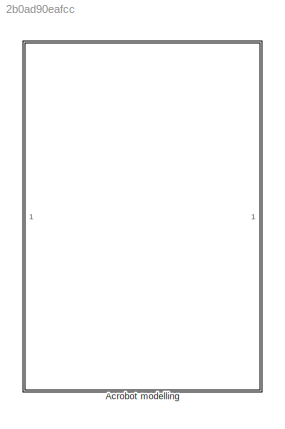
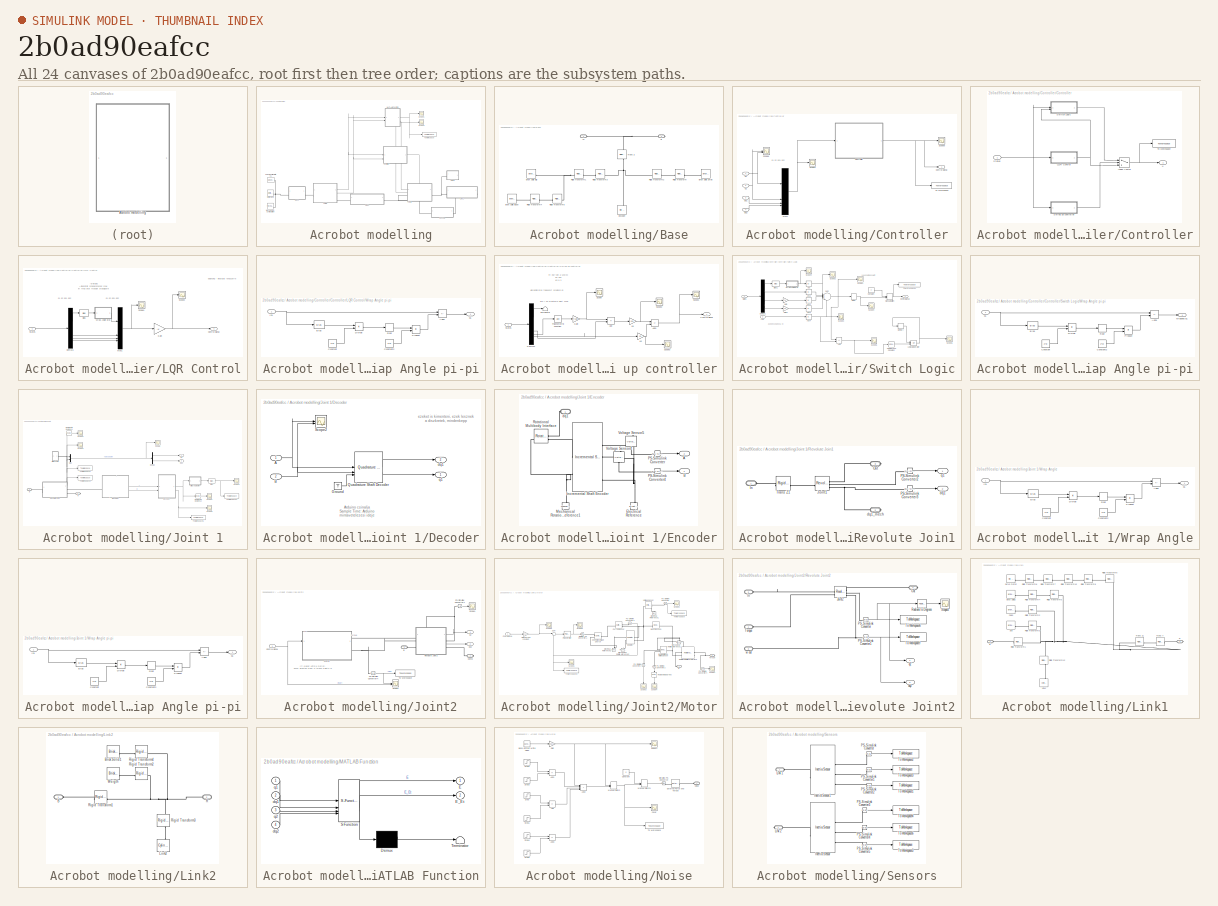
[diagram: thumbnail index - all 24 canvases of the model, root first then tree order]
MODEL slx_2b0ad90eafcc
KIND model
CONFIG AbsTol = auto
CONFIG EnableMultiTasking = off
CONFIG FixedStep = 0.0002
CONFIG MaxStep = 1.6
CONFIG MinStep = auto
CONFIG RelTol = 1e-4
CONFIG SampleTimeConstraint = Unconstrained
CONFIG SolverName = ode23t
CONFIG StartTime = 0.0
CONFIG StopTime = 35
BLOCK [SubSystem] Acrobot modelling
BLOCK [SubSystem] Acrobot modelling/Base
BLOCK [PMIOPort] Acrobot modelling/Base/B 
  Port = 2
  Side = Right
BLOCK [Reference] Acrobot modelling/Base/Brick Solid Base  REF=sm_lib/Body Elements/Brick Solid
  SourceBlock = sm_lib/Body Elements/Brick Solid
  SourceType = Brick Solid
BLOCK [Reference] Acrobot modelling/Base/Brick Solid Big  REF=sm_lib/Body Elements/Brick Solid
  SourceBlock = sm_lib/Body Elements/Brick Solid
  SourceType = Brick Solid
BLOCK [Reference] Acrobot modelling/Base/Brick Solid Small  REF=sm_lib/Body Elements/Brick Solid
  NameLocation = top
  SourceBlock = sm_lib/Body Elements/Brick Solid
  SourceType = Brick Solid
BLOCK [Reference] Acrobot modelling/Base/Encoder  REF=sm_lib/Body Elements/File Solid
  NameLocation = right
  SourceBlock = sm_lib/Body Elements/File Solid
  SourceType = File Solid
BLOCK [Reference] Acrobot modelling/Base/Rigid Transform  REF=sm_lib/Frames and
Transforms/Rigid
Transform
  SourceBlock = sm_lib/Frames and\nTransforms/Rigid\nTransform
  SourceType = Rigid\nTransform
BLOCK [Reference] Acrobot modelling/Base/Rigid Transform1  REF=sm_lib/Frames and
Transforms/Rigid
Transform
  NameLocation = top
  SourceBlock = sm_lib/Frames and\nTransforms/Rigid\nTransform
  SourceType = Rigid\nTransform
BLOCK [Reference] Acrobot modelling/Base/Rigid Transform2  REF=sm_lib/Frames and
Transforms/Rigid
Transform
  SourceBlock = sm_lib/Frames and\nTransforms/Rigid\nTransform
  SourceType = Rigid\nTransform
BLOCK [Reference] Acrobot modelling/Base/Rigid Transform3  REF=sm_lib/Frames and
Transforms/Rigid
Transform
  NameLocation = top
  SourceBlock = sm_lib/Frames and\nTransforms/Rigid\nTransform
  SourceType = Rigid\nTransform
BLOCK [Reference] Acrobot modelling/Base/Rigid Transform4  REF=sm_lib/Frames and
Transforms/Rigid
Transform
  NameLocation = top
  SourceBlock = sm_lib/Frames and\nTransforms/Rigid\nTransform
  SourceType = Rigid\nTransform
BLOCK [Reference] Acrobot modelling/Base/Rigid Transform5  REF=sm_lib/Frames and
Transforms/Rigid
Transform
  NameLocation = top
  SourceBlock = sm_lib/Frames and\nTransforms/Rigid\nTransform
  SourceType = Rigid\nTransform
BLOCK [Reference] Acrobot modelling/Base/Trans Z  REF=sm_lib/Frames and
Transforms/Rigid
Transform
  NameLocation = right
  SourceBlock = sm_lib/Frames and\nTransforms/Rigid\nTransform
  SourceType = Rigid\nTransform
BLOCK [PMIOPort] Acrobot modelling/Base/W 
  Side = Left
BLOCK [SubSystem] Acrobot modelling/Controller
BLOCK [Outport] Acrobot modelling/Controller/Control signal
BLOCK [SubSystem] Acrobot modelling/Controller/Controller
BLOCK [MultiPortSwitch] Acrobot modelling/Controller/Controller/Index Vector
  DataPortOrder = Zero-based contiguous
  InputSameDT = off
  Inputs = 2
  SaturateOnIntegerOverflow = off
  zeroidx = on
BLOCK [SubSystem] Acrobot modelling/Controller/Controller/LQR Control
BLOCK [Bias] Acrobot modelling/Controller/Controller/LQR Control/Bias
  Bias = -pi
  SaturateOnIntegerOverflow = off
BLOCK [Outport] Acrobot modelling/Controller/Controller/LQR Control/Control signal
BLOCK [Demux] Acrobot modelling/Controller/Controller/LQR Control/Demux1
BLOCK [Gain] Acrobot modelling/Controller/Controller/LQR Control/Gain
  Gain = -K
  Multiplication = Matrix(K*u)
BLOCK [Mux] Acrobot modelling/Controller/Controller/LQR Control/Mux1
  DisplayOption = bar
BLOCK [Scope] Acrobot modelling/Controller/Controller/LQR Control/Scope1
  Floating = off
  NumInputPorts = 1
  ScopeSpecificationString = Simulink.scopes.TimeScopeBlockCfg('CurrentConfiguration', extmgr.ConfigurationSet(extmgr.Configuration('Core','General UI',true),extmgr.Configuration('Core','Source UI',true),extmgr.Configuration('Sources','WiredSimulink',true,'DataLoggingVariableName','ScopeData1'),extmgr.Configuration('Visuals','Time Domain',true,'SerializedDisplays',{struct('MinYLimReal','-11.00385','MaxYLimReal','6.27216','YLa...<+1518ch>
BLOCK [Scope] Acrobot modelling/Controller/Controller/LQR Control/Scope2
  Floating = off
  NumInputPorts = 1
  ScopeSpecificationString = Simulink.scopes.TimeScopeBlockCfg('CurrentConfiguration', extmgr.ConfigurationSet(extmgr.Configuration('Core','General UI',true),extmgr.Configuration('Core','Source UI',true),extmgr.Configuration('Sources','WiredSimulink',true,'DataLoggingVariableName','ScopeData2'),extmgr.Configuration('Visuals','Time Domain',true,'SerializedDisplays',{struct('MinYLimReal','-163.156','MaxYLimReal','163.56574','YL...<+1481ch>
BLOCK [Inport] Acrobot modelling/Controller/Controller/LQR Control/States
BLOCK [SubSystem] Acrobot modelling/Controller/Controller/LQR Control/Wrap Angle pi-pi
BLOCK [Sum] Acrobot modelling/Controller/Controller/LQR Control/Wrap Angle pi-pi/Add1
  IconShape = rectangular
  Inputs = +-
BLOCK [Bias] Acrobot modelling/Controller/Controller/LQR Control/Wrap Angle pi-pi/Bias
  Bias = pi
  SaturateOnIntegerOverflow = off
BLOCK [Constant] Acrobot modelling/Controller/Controller/LQR Control/Wrap Angle pi-pi/Constant
  Value = 2*pi
BLOCK [Constant] Acrobot modelling/Controller/Controller/LQR Control/Wrap Angle pi-pi/Constant2
  Value = 2*pi
BLOCK [Product] Acrobot modelling/Controller/Controller/LQR Control/Wrap Angle pi-pi/Divide
  Inputs = */
BLOCK [Rounding] Acrobot modelling/Controller/Controller/LQR Control/Wrap Angle pi-pi/Floor
BLOCK [Inport] Acrobot modelling/Controller/Controller/LQR Control/Wrap Angle pi-pi/In1
BLOCK [Product] Acrobot modelling/Controller/Controller/LQR Control/Wrap Angle pi-pi/Product
  Inputs = **
BLOCK [Outport] Acrobot modelling/Controller/Controller/LQR Control/Wrap Angle pi-pi/q1
BLOCK [Inport] Acrobot modelling/Controller/Controller/States
BLOCK [SubSystem] Acrobot modelling/Controller/Controller/Swing up controller
BLOCK [Sum] Acrobot modelling/Controller/Controller/Swing up controller/Add
  IconShape = rectangular
  Inputs = +-
BLOCK [Sum] Acrobot modelling/Controller/Controller/Swing up controller/Add1
  IconShape = rectangular
  Inputs = +-
BLOCK [Outport] Acrobot modelling/Controller/Controller/Swing up controller/Control signal
BLOCK [Demux] Acrobot modelling/Controller/Controller/Swing up controller/Demux1
BLOCK [Gain] Acrobot modelling/Controller/Controller/Swing up controller/Gain
  Gain = 2*1.0/pi
BLOCK [Scope] Acrobot modelling/Controller/Controller/Swing up controller/Scope
  Floating = off
  NumInputPorts = 1
  ScopeSpecificationString = Simulink.scopes.TimeScopeBlockCfg('CurrentConfiguration', extmgr.ConfigurationSet(extmgr.Configuration('Core','General UI',true),extmgr.Configuration('Core','Source UI',true),extmgr.Configuration('Sources','WiredSimulink',true,'DataLoggingVariableName','ScopeData1'),extmgr.Configuration('Visuals','Time Domain',true,'SerializedDisplays',{struct('MinYLimReal','-1.15627','MaxYLimReal','1.15612','YLab...<+1417ch>
BLOCK [Scope] Acrobot modelling/Controller/Controller/Swing up controller/Scope1
  Floating = off
  NumInputPorts = 1
  ScopeSpecificationString = Simulink.scopes.TimeScopeBlockCfg('CurrentConfiguration', extmgr.ConfigurationSet(extmgr.Configuration('Core','General UI',true),extmgr.Configuration('Core','Source UI',true),extmgr.Configuration('Sources','WiredSimulink',true,'DataLoggingVariableName','ScopeData1'),extmgr.Configuration('Visuals','Time Domain',true,'SerializedDisplays',{struct('MinYLimReal','-30.04206','MaxYLimReal','30.04253','YL...<+1442ch>
BLOCK [Scope] Acrobot modelling/Controller/Controller/Swing up controller/Scope2
  Floating = off
  NumInputPorts = 1
  ScopeSpecificationString = Simulink.scopes.TimeScopeBlockCfg('CurrentConfiguration', extmgr.ConfigurationSet(extmgr.Configuration('Core','General UI',true),extmgr.Configuration('Core','Source UI',true),extmgr.Configuration('Sources','WiredSimulink',true,'DataLoggingVariableName','ScopeData2'),extmgr.Configuration('Visuals','Time Domain',true,'SerializedDisplays',{struct('MinYLimReal','-30.04355','MaxYLimReal','30.04403','YL...<+1440ch>
BLOCK [Scope] Acrobot modelling/Controller/Controller/Swing up controller/Scope3
  Floating = off
  NumInputPorts = 1
  ScopeSpecificationString = Simulink.scopes.TimeScopeBlockCfg('CurrentConfiguration', extmgr.ConfigurationSet(extmgr.Configuration('Core','General UI',true),extmgr.Configuration('Core','Source UI',true),extmgr.Configuration('Sources','WiredSimulink',true,'DataLoggingVariableName','ScopeData3'),extmgr.Configuration('Visuals','Time Domain',true,'SerializedDisplays',{struct('MinYLimReal','-2.81547','MaxYLimReal','2.46956','YLab...<+1415ch>
BLOCK [Inport] Acrobot modelling/Controller/Controller/Swing up controller/States
BLOCK [Terminator] Acrobot modelling/Controller/Controller/Swing up controller/Terminator
BLOCK [Trigonometry] Acrobot modelling/Controller/Controller/Swing up controller/Trigonometric Function
  Operator = atan
BLOCK [Gain] Acrobot modelling/Controller/Controller/Swing up controller/kd
  Gain = 0.3
BLOCK [Gain] Acrobot modelling/Controller/Controller/Swing up controller/kp
  Gain = 450
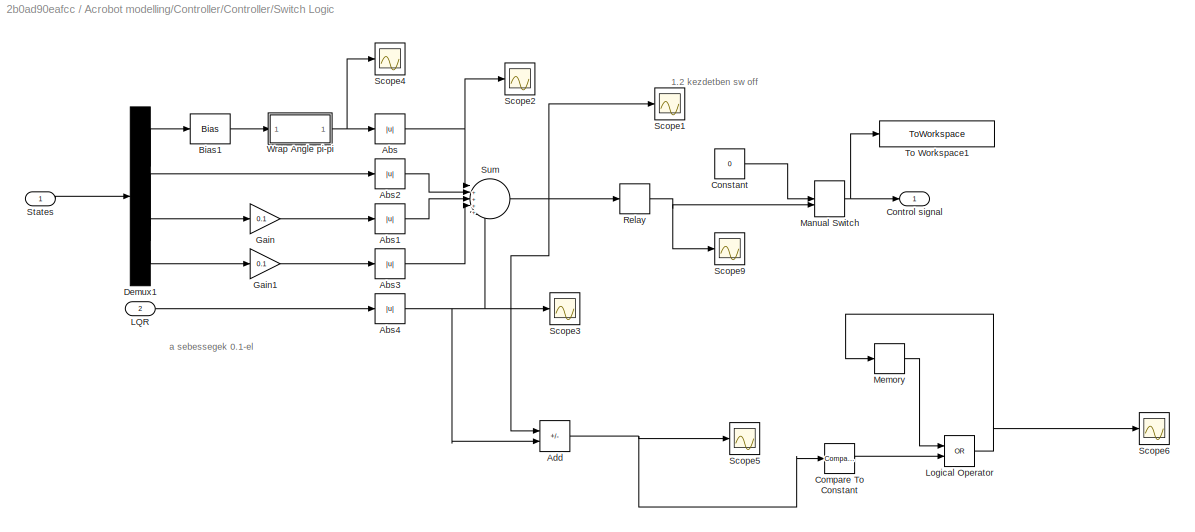
BLOCK [SubSystem] Acrobot modelling/Controller/Controller/Switch Logic
BLOCK [Abs] Acrobot modelling/Controller/Controller/Switch Logic/Abs
  SaturateOnIntegerOverflow = off
BLOCK [Abs] Acrobot modelling/Controller/Controller/Switch Logic/Abs1
  SaturateOnIntegerOverflow = off
BLOCK [Abs] Acrobot modelling/Controller/Controller/Switch Logic/Abs2
  SaturateOnIntegerOverflow = off
BLOCK [Abs] Acrobot modelling/Controller/Controller/Switch Logic/Abs3
  SaturateOnIntegerOverflow = off
BLOCK [Abs] Acrobot modelling/Controller/Controller/Switch Logic/Abs4
  SaturateOnIntegerOverflow = off
BLOCK [Sum] Acrobot modelling/Controller/Controller/Switch Logic/Add
  IconShape = rectangular
  Inputs = +-
BLOCK [Bias] Acrobot modelling/Controller/Controller/Switch Logic/Bias1
  Bias = -pi
  SaturateOnIntegerOverflow = off
BLOCK [Reference] Acrobot modelling/Controller/Controller/Switch Logic/Compare To Constant  REF=hdlsllib/Logic and Bit
Operations/Compare
To Constant
  SourceBlock = hdlsllib/Logic and Bit\nOperations/Compare\nTo Constant
  SourceType = Compare To Constant
BLOCK [Constant] Acrobot modelling/Controller/Controller/Switch Logic/Constant
  Value = 0
BLOCK [Outport] Acrobot modelling/Controller/Controller/Switch Logic/Control signal
BLOCK [Demux] Acrobot modelling/Controller/Controller/Switch Logic/Demux1
BLOCK [Gain] Acrobot modelling/Controller/Controller/Switch Logic/Gain
  Gain = 0.1
BLOCK [Gain] Acrobot modelling/Controller/Controller/Switch Logic/Gain1
  Gain = 0.1
BLOCK [Inport] Acrobot modelling/Controller/Controller/Switch Logic/LQR
  Port = 2
BLOCK [Logic] Acrobot modelling/Controller/Controller/Switch Logic/Logical Operator
  AllPortsSameDT = off
  Operator = OR
  OutDataTypeStr = boolean
BLOCK [ManualSwitch] Acrobot modelling/Controller/Controller/Switch Logic/Manual Switch
  CurrentSetting = 0
BLOCK [Memory] Acrobot modelling/Controller/Controller/Switch Logic/Memory
BLOCK [Relay] Acrobot modelling/Controller/Controller/Switch Logic/Relay
  OffOutputValue = 1
  OffSwitchValue = 1.2
  OnOutputValue = 0
  OnSwitchValue = 50
BLOCK [Scope] Acrobot modelling/Controller/Controller/Switch Logic/Scope1
  Floating = off
  NumInputPorts = 1
  ScopeSpecificationString = Simulink.scopes.TimeScopeBlockCfg('CurrentConfiguration', extmgr.ConfigurationSet(extmgr.Configuration('Core','General UI',true),extmgr.Configuration('Core','Source UI',true),extmgr.Configuration('Sources','WiredSimulink',true,'DataLoggingVariableName','ScopeData1'),extmgr.Configuration('Visuals','Time Domain',true,'SerializedDisplays',{struct('MinYLimReal','-16.97383','MaxYLimReal','152.78508','Y...<+1443ch>
BLOCK [Scope] Acrobot modelling/Controller/Controller/Switch Logic/Scope2
  Floating = off
  NumInputPorts = 1
  ScopeSpecificationString = Simulink.scopes.TimeScopeBlockCfg('CurrentConfiguration', extmgr.ConfigurationSet(extmgr.Configuration('Core','General UI',true),extmgr.Configuration('Core','Source UI',true),extmgr.Configuration('Sources','WiredSimulink',true,'DataLoggingVariableName','ScopeData2'),extmgr.Configuration('Visuals','Time Domain',true,'SerializedDisplays',{struct('MinYLimReal','-0.3927','MaxYLimReal','3.53429','YLabe...<+1431ch>
BLOCK [Scope] Acrobot modelling/Controller/Controller/Switch Logic/Scope3
  Floating = off
  NumInputPorts = 1
  ScopeSpecificationString = Simulink.scopes.TimeScopeBlockCfg('CurrentConfiguration', extmgr.ConfigurationSet(extmgr.Configuration('Core','General UI',true),extmgr.Configuration('Core','Source UI',true),extmgr.Configuration('Sources','WiredSimulink',true,'DataLoggingVariableName','ScopeData3'),extmgr.Configuration('Visuals','Time Domain',true,'SerializedDisplays',{struct('MinYLimReal','-16.2763','MaxYLimReal','146.48672','YL...<+1442ch>
BLOCK [Scope] Acrobot modelling/Controller/Controller/Switch Logic/Scope4
  Floating = off
  NumInputPorts = 1
  ScopeSpecificationString = Simulink.scopes.TimeScopeBlockCfg('CurrentConfiguration', extmgr.ConfigurationSet(extmgr.Configuration('Core','General UI',true),extmgr.Configuration('Core','Source UI',true),extmgr.Configuration('Sources','WiredSimulink',true,'DataLoggingVariableName','ScopeData4'),extmgr.Configuration('Visuals','Time Domain',true,'SerializedDisplays',{struct('MinYLimReal','-3.92699','MaxYLimReal','3.92699','YLab...<+1446ch>
BLOCK [Scope] Acrobot modelling/Controller/Controller/Switch Logic/Scope5
  Floating = off
  NumInputPorts = 1
  ScopeSpecificationString = Simulink.scopes.TimeScopeBlockCfg('CurrentConfiguration', extmgr.ConfigurationSet(extmgr.Configuration('Core','General UI',true),extmgr.Configuration('Core','Source UI',true),extmgr.Configuration('Sources','WiredSimulink',true,'DataLoggingVariableName','ScopeData1'),extmgr.Configuration('Visuals','Time Domain',true,'SerializedDisplays',{struct('MinYLimReal','-1.84278','MaxYLimReal','17.93804','YLa...<+1437ch>
BLOCK [Scope] Acrobot modelling/Controller/Controller/Switch Logic/Scope6
  Floating = off
  NumInputPorts = 1
  ScopeSpecificationString = Simulink.scopes.TimeScopeBlockCfg('CurrentConfiguration', extmgr.ConfigurationSet(extmgr.Configuration('Core','General UI',true),extmgr.Configuration('Core','Source UI',true),extmgr.Configuration('Sources','WiredSimulink',true,'DataLoggingVariableName','ScopeData1'),extmgr.Configuration('Visuals','Time Domain',true,'SerializedDisplays',{struct('MinYLimReal','-0.10049','MaxYLimReal','1.098','YLabel...<+1438ch>
BLOCK [Scope] Acrobot modelling/Controller/Controller/Switch Logic/Scope9
  Floating = off
  NumInputPorts = 1
  ScopeSpecificationString = Simulink.scopes.TimeScopeBlockCfg('CurrentConfiguration', extmgr.ConfigurationSet(extmgr.Configuration('Core','General UI',true),extmgr.Configuration('Core','Source UI',true),extmgr.Configuration('Sources','WiredSimulink',true,'DataLoggingVariableName','ScopeData7'),extmgr.Configuration('Visuals','Time Domain',true,'SerializedDisplays',{struct('MinYLimReal','0.99855','MaxYLimReal','1.00049','YLabe...<+1439ch>
BLOCK [Inport] Acrobot modelling/Controller/Controller/Switch Logic/States
BLOCK [Sum] Acrobot modelling/Controller/Controller/Switch Logic/Sum
  Inputs = |+++++
BLOCK [ToWorkspace] Acrobot modelling/Controller/Controller/Switch Logic/To Workspace1
  FixptAsFi = on
  MaxDataPoints = inf
  SampleTime = -1
  SaveFormat = Timeseries
  VariableName = switch_controller_state
BLOCK [SubSystem] Acrobot modelling/Controller/Controller/Switch Logic/Wrap Angle pi-pi
BLOCK [Sum] Acrobot modelling/Controller/Controller/Switch Logic/Wrap Angle pi-pi/Add1
  IconShape = rectangular
  Inputs = +-
BLOCK [Bias] Acrobot modelling/Controller/Controller/Switch Logic/Wrap Angle pi-pi/Bias
  Bias = pi
  SaturateOnIntegerOverflow = off
BLOCK [Constant] Acrobot modelling/Controller/Controller/Switch Logic/Wrap Angle pi-pi/Constant
  Value = 2*pi
BLOCK [Constant] Acrobot modelling/Controller/Controller/Switch Logic/Wrap Angle pi-pi/Constant2
  Value = 2*pi
BLOCK [Product] Acrobot modelling/Controller/Controller/Switch Logic/Wrap Angle pi-pi/Divide
  Inputs = */
BLOCK [Rounding] Acrobot modelling/Controller/Controller/Switch Logic/Wrap Angle pi-pi/Floor
BLOCK [Product] Acrobot modelling/Controller/Controller/Switch Logic/Wrap Angle pi-pi/Product
  Inputs = **
BLOCK [Inport] Acrobot modelling/Controller/Controller/Switch Logic/Wrap Angle pi-pi/q1
BLOCK [Outport] Acrobot modelling/Controller/Controller/Switch Logic/Wrap Angle pi-pi/wrapped q1
BLOCK [ToWorkspace] Acrobot modelling/Controller/Controller/To Workspace
  FixptAsFi = on
  MaxDataPoints = inf
  SampleTime = -1
  SaveFormat = Timeseries
  VariableName = u_torque
BLOCK [Outport] Acrobot modelling/Controller/Controller/u
BLOCK [Mux] Acrobot modelling/Controller/Mux1
  DisplayOption = bar
BLOCK [Scope] Acrobot modelling/Controller/Scope1
  Floating = off
  NumInputPorts = 1
  ScopeSpecificationString = Simulink.scopes.TimeScopeBlockCfg('CurrentConfiguration', extmgr.ConfigurationSet(extmgr.Configuration('Core','General UI',true),extmgr.Configuration('Core','Source UI',true),extmgr.Configuration('Sources','WiredSimulink',true,'DataLoggingVariableName','ScopeData3'),extmgr.Configuration('Visuals','Time Domain',true,'SerializedDisplays',{struct('MinYLimReal','-34.96648','MaxYLimReal','28.44516','YL...<+1461ch>
BLOCK [Scope] Acrobot modelling/Controller/Scope6
  Floating = off
  NumInputPorts = 2
  ScopeSpecificationString = Simulink.scopes.TimeScopeBlockCfg('CurrentConfiguration', extmgr.ConfigurationSet(extmgr.Configuration('Core','General UI',true),extmgr.Configuration('Core','Source UI',true),extmgr.Configuration('Sources','WiredSimulink',true,'DataLoggingVariableName','ScopeData1'),extmgr.Configuration('Visuals','Time Domain',true,'SerializedDisplays',{struct('MinYLimReal','-0.83647','MaxYLimReal','0.94213','YLab...<+1444ch>
BLOCK [Scope] Acrobot modelling/Controller/Scope9
  Floating = off
  NumInputPorts = 1
  ScopeSpecificationString = Simulink.scopes.TimeScopeBlockCfg('CurrentConfiguration', extmgr.ConfigurationSet(extmgr.Configuration('Core','General UI',true),extmgr.Configuration('Core','Source UI',true),extmgr.Configuration('Sources','WiredSimulink',true,'DataLoggingVariableName','ScopeData2'),extmgr.Configuration('Visuals','Time Domain',true,'SerializedDisplays',{struct('MinYLimReal','-291.02223','MaxYLimReal','385.98509','...<+1497ch>
BLOCK [ToWorkspace] Acrobot modelling/Controller/To Workspace
  FixptAsFi = on
  MaxDataPoints = inf
  SampleTime = -1
  SaveFormat = Timeseries
  VariableName = u
BLOCK [Inport] Acrobot modelling/Controller/dq1
  Port = 3
BLOCK [Inport] Acrobot modelling/Controller/dq2
  Port = 4
BLOCK [Inport] Acrobot modelling/Controller/q1
BLOCK [Inport] Acrobot modelling/Controller/q2
  Port = 2
BLOCK [SubSystem] Acrobot modelling/Joint 1
BLOCK [PMIOPort] Acrobot modelling/Joint 1/ B
  Side = Left
BLOCK [Bias] Acrobot modelling/Joint 1/Bias
  Bias = +Q0(1)
  SaturateOnIntegerOverflow = off
BLOCK [SubSystem] Acrobot modelling/Joint 1/Decoder
BLOCK [Inport] Acrobot modelling/Joint 1/Decoder/A
  NameLocation = top
BLOCK [Inport] Acrobot modelling/Joint 1/Decoder/B
  NameLocation = top
  Port = 2
BLOCK [Ground] Acrobot modelling/Joint 1/Decoder/Ground
BLOCK [Reference] Acrobot modelling/Joint 1/Decoder/Quadrature Shaft Decoder  REF=eeQuadratureDecoder/Quadrature Shaft
Decoder
  SourceBlock = eeQuadratureDecoder/Quadrature Shaft\nDecoder
  SourceType = Quadrature Shaft Decoder
BLOCK [Scope] Acrobot modelling/Joint 1/Decoder/Scope2
  Floating = off
  NumInputPorts = 2
  ScopeSpecificationString = Simulink.scopes.TimeScopeBlockCfg('CurrentConfiguration', extmgr.ConfigurationSet(extmgr.Configuration('Core','General UI',true),extmgr.Configuration('Core','Source UI',true),extmgr.Configuration('Sources','WiredSimulink',true,'DataLoggingVariableName','ScopeData6'),extmgr.Configuration('Visuals','Time Domain',true,'SerializedDisplays',{struct('MinYLimReal','-0.625','MaxYLimReal','5.625','YLabelRe...<+1396ch>
BLOCK [Outport] Acrobot modelling/Joint 1/Decoder/dq1
  Port = 2
BLOCK [Outport] Acrobot modelling/Joint 1/Decoder/q1
BLOCK [Demux] Acrobot modelling/Joint 1/Demux
  Outputs = 2
BLOCK [SubSystem] Acrobot modelling/Joint 1/Encoder
  PortSchema = {"entries":[{"content":{"sides":[{"content":{"connectorIds":[]},"type":"ConnectorPlacement.EquallySpacedRectSide","uuid":"4bcc0c53-4e73-4adf-a602-93b77e4abcf7"},{"content":{"connectorIds":[],"side":"RIGHT"},"type":"ConnectorPlacement.EquallySpacedRectSide","uuid":"6813aea3-06b4-4fc3-99a5-a3ea46ae965d"},{"content":{"connectorIds":["LConn1"],"side":"TOP"},"type":"ConnectorPlacement.EquallySpacedRect...<+394ch>
BLOCK [Outport] Acrobot modelling/Joint 1/Encoder/A
  Port = 2
BLOCK [Outport] Acrobot modelling/Joint 1/Encoder/B
BLOCK [Reference] Acrobot modelling/Joint 1/Encoder/Electrical Reference  REF=fl_lib/Electrical/Electrical Elements/Electrical Reference
  NameLocation = right
  SourceBlock = fl_lib/Electrical/Electrical Elements/Electrical Reference
  SourceType = Electrical Reference
BLOCK [Reference] Acrobot modelling/Joint 1/Encoder/Incremental Shaft Encoder  REF=ee_lib/Sensors &
Transducers/Incremental Shaft
Encoder
  SourceBlock = ee_lib/Sensors &\nTransducers/Incremental Shaft\nEncoder
  SourceType = Incremental Shaft\nEncoder
BLOCK [Reference] Acrobot modelling/Joint 1/Encoder/Mechanical Rotational Reference1  REF=fl_lib/Mechanical/Rotational Elements/Mechanical
Rotational Reference
  NameLocation = right
  SourceBlock = fl_lib/Mechanical/Rotational Elements/Mechanical\nRotational Reference
  SourceType = Mechanical\nRotational Reference
BLOCK [Reference] Acrobot modelling/Joint 1/Encoder/PS-Simulink Converter  REF=nesl_utility/PS-Simulink
Converter
  SourceBlock = nesl_utility/PS-Simulink\nConverter
  SourceType = PS-Simulink\nConverter
BLOCK [Reference] Acrobot modelling/Joint 1/Encoder/PS-Simulink Converter4  REF=nesl_utility/PS-Simulink
Converter
  SourceBlock = nesl_utility/PS-Simulink\nConverter
  SourceType = PS-Simulink\nConverter
BLOCK [Reference] Acrobot modelling/Joint 1/Encoder/Rotational Multibody Interface  REF=fl_lib/Mechanical/Multibody Interfaces/Rotational Multibody
Interface
  SourceBlock = fl_lib/Mechanical/Multibody Interfaces/Rotational Multibody\nInterface
  SourceType = Rotational Multibody\nInterface
BLOCK [Reference] Acrobot modelling/Joint 1/Encoder/Voltage Sensor4  REF=fl_lib/Electrical/Electrical Sensors/Voltage Sensor
  NameLocation = right
  SourceBlock = fl_lib/Electrical/Electrical Sensors/Voltage Sensor
  SourceType = Voltage Sensor
BLOCK [Reference] Acrobot modelling/Joint 1/Encoder/Voltage Sensor5  REF=fl_lib/Electrical/Electrical Sensors/Voltage Sensor
  NameLocation = right
  SourceBlock = fl_lib/Electrical/Electrical Sensors/Voltage Sensor
  SourceType = Voltage Sensor
BLOCK [PMIOPort] Acrobot modelling/Joint 1/Encoder/dq1
  NameLocation = top
  Side = Left
BLOCK [Mux] Acrobot modelling/Joint 1/Mux
  DisplayOption = bar
  Inputs = 2
BLOCK [PMIOPort] Acrobot modelling/Joint 1/R
  Port = 2
  Side = Right
BLOCK [Reference] Acrobot modelling/Joint 1/Radians to Degrees1  REF=simulink_extras/Transformations/Radians
to Degrees
  SourceBlock = simulink_extras/Transformations/Radians\nto Degrees
  SourceType = RadiansToDegrees
BLOCK [Reference] Acrobot modelling/Joint 1/Radians to Degrees2  REF=simulink_extras/Transformations/Radians
to Degrees
  SourceBlock = simulink_extras/Transformations/Radians\nto Degrees
  SourceType = RadiansToDegrees
BLOCK [SubSystem] Acrobot modelling/Joint 1/Revolute Join1
  PortSchema = {"entries":[{"content":{"sides":[{"content":{"connectorIds":["LConn1"]},"type":"ConnectorPlacement.EquallySpacedRectSide","uuid":"1e59237d-87a3-4f63-9373-2a5013ccad9d"},{"content":{"connectorIds":["RConn1","RConn2"],"side":"RIGHT"},"type":"ConnectorPlacement.EquallySpacedRectSide","uuid":"e836145a-177c-4c45-95bb-52f5c71774ac"},{"content":{"connectorIds":["Out1","Out2"],"side":"TOP"},"type":"Connec...<+267ch>
BLOCK [PMIOPort] Acrobot modelling/Joint 1/Revolute Join1/ In
  Side = Left
BLOCK [Reference] Acrobot modelling/Joint 1/Revolute Join1/Joint1  REF=sm_lib/Joints/Revolute Joint
  SourceBlock = sm_lib/Joints/Revolute Joint
  SourceType = Revolute Joint
BLOCK [PMIOPort] Acrobot modelling/Joint 1/Revolute Join1/Out
  Port = 3
  Side = Right
BLOCK [Reference] Acrobot modelling/Joint 1/Revolute Join1/PS-Simulink Converter2  REF=nesl_utility/PS-Simulink
Converter
  SourceBlock = nesl_utility/PS-Simulink\nConverter
  SourceType = PS-Simulink\nConverter
BLOCK [Reference] Acrobot modelling/Joint 1/Revolute Join1/PS-Simulink Converter3  REF=nesl_utility/PS-Simulink
Converter
  SourceBlock = nesl_utility/PS-Simulink\nConverter
  SourceType = PS-Simulink\nConverter
BLOCK [Reference] Acrobot modelling/Joint 1/Revolute Join1/Trans Z1  REF=sm_lib/Frames and
Transforms/Rigid
Transform
  SourceBlock = sm_lib/Frames and\nTransforms/Rigid\nTransform
  SourceType = Rigid\nTransform
BLOCK [Outport] Acrobot modelling/Joint 1/Revolute Join1/dq1
  Port = 2
BLOCK [PMIOPort] Acrobot modelling/Joint 1/Revolute Join1/dq1_mech
  Port = 2
  Side = Right
BLOCK [Outport] Acrobot modelling/Joint 1/Revolute Join1/q1
BLOCK [Scope] Acrobot modelling/Joint 1/Scope
  Floating = off
  NumInputPorts = 1
  ScopeSpecificationString = Simulink.scopes.TimeScopeBlockCfg('CurrentConfiguration', extmgr.ConfigurationSet(extmgr.Configuration('Core','General UI',true),extmgr.Configuration('Core','Source UI',true),extmgr.Configuration('Sources','WiredSimulink',true,'DataLoggingVariableName','ScopeData1'),extmgr.Configuration('Visuals','Time Domain',true,'SerializedDisplays',{struct('MinYLimReal','-10.56084','MaxYLimReal','10.52189','YL...<+1489ch>
BLOCK [Scope] Acrobot modelling/Joint 1/Scope1
  Floating = off
  NumInputPorts = 1
  ScopeSpecificationString = Simulink.scopes.TimeScopeBlockCfg('CurrentConfiguration', extmgr.ConfigurationSet(extmgr.Configuration('Core','General UI',true),extmgr.Configuration('Core','Source UI',true),extmgr.Configuration('Sources','WiredSimulink',true,'DataLoggingVariableName','ScopeData4'),extmgr.Configuration('Visuals','Time Domain',true,'SerializedDisplays',{struct('MinYLimReal','-45.00000','MaxYLimReal','405.00000','Y...<+1461ch>
BLOCK [Scope] Acrobot modelling/Joint 1/Scope2
  Floating = off
  NumInputPorts = 1
  ScopeSpecificationString = Simulink.scopes.TimeScopeBlockCfg('CurrentConfiguration', extmgr.ConfigurationSet(extmgr.Configuration('Core','General UI',true),extmgr.Configuration('Core','Source UI',true),extmgr.Configuration('Sources','WiredSimulink',true,'DataLoggingVariableName','ScopeData5'),extmgr.Configuration('Visuals','Time Domain',true,'SerializedDisplays',{struct('MinYLimReal','-629.37645','MaxYLimReal','256.99435','...<+1465ch>
BLOCK [Scope] Acrobot modelling/Joint 1/Scope3
  Floating = off
  NumInputPorts = 1
  ScopeSpecificationString = Simulink.scopes.TimeScopeBlockCfg('CurrentConfiguration', extmgr.ConfigurationSet(extmgr.Configuration('Core','General UI',true),extmgr.Configuration('Core','Source UI',true),extmgr.Configuration('Sources','WiredSimulink',true,'DataLoggingVariableName','ScopeData6'),extmgr.Configuration('Visuals','Time Domain',true,'SerializedDisplays',{struct('MinYLimReal','-10.66533','MaxYLimReal','10.75822','YL...<+1454ch>
BLOCK [Scope] Acrobot modelling/Joint 1/Scope4
  Floating = off
  NumInputPorts = 1
  ScopeSpecificationString = Simulink.scopes.TimeScopeBlockCfg('CurrentConfiguration', extmgr.ConfigurationSet(extmgr.Configuration('Core','General UI',true),extmgr.Configuration('Core','Source UI',true),extmgr.Configuration('Sources','WiredSimulink',true,'DataLoggingVariableName','ScopeData2'),extmgr.Configuration('Visuals','Time Domain',true,'SerializedDisplays',{struct('MinYLimReal','-0.5215','MaxYLimReal','0.44877','YLabe...<+1432ch>
BLOCK [Scope] Acrobot modelling/Joint 1/Scope5
  Floating = off
  NumInputPorts = 1
  ScopeSpecificationString = Simulink.scopes.TimeScopeBlockCfg('CurrentConfiguration', extmgr.ConfigurationSet(extmgr.Configuration('Core','General UI',true),extmgr.Configuration('Core','Source UI',true),extmgr.Configuration('Sources','WiredSimulink',true,'DataLoggingVariableName','ScopeData3'),extmgr.Configuration('Visuals','Time Domain',true,'SerializedDisplays',{struct('MinYLimReal','-13.08997','MaxYLimReal','13.08997','YL...<+1447ch>
BLOCK [ToWorkspace] Acrobot modelling/Joint 1/To Workspace1
  FixptAsFi = on
  MaxDataPoints = inf
  SampleTime = -1
  SaveFormat = Timeseries
  VariableName = q1_v
BLOCK [ToWorkspace] Acrobot modelling/Joint 1/To Workspace2
  FixptAsFi = on
  MaxDataPoints = inf
  SampleTime = -1
  SaveFormat = Timeseries
  VariableName = dq1_v
BLOCK [ToWorkspace] Acrobot modelling/Joint 1/To Workspace4
  FixptAsFi = on
  MaxDataPoints = inf
  SampleTime = -1
  SaveFormat = Timeseries
  VariableName = q1_m
BLOCK [ToWorkspace] Acrobot modelling/Joint 1/To Workspace5
  FixptAsFi = on
  MaxDataPoints = inf
  SampleTime = -1
  SaveFormat = Timeseries
  VariableName = dq1_m
BLOCK [SubSystem] Acrobot modelling/Joint 1/Wrap Angle
BLOCK [SubSystem] Acrobot modelling/Joint 1/Wrap Angle pi-pi
BLOCK [Sum] Acrobot modelling/Joint 1/Wrap Angle pi-pi/Add1
  IconShape = rectangular
  Inputs = +-
BLOCK [Bias] Acrobot modelling/Joint 1/Wrap Angle pi-pi/Bias
  Bias = pi
  SaturateOnIntegerOverflow = off
BLOCK [Constant] Acrobot modelling/Joint 1/Wrap Angle pi-pi/Constant
  Value = 2*pi
BLOCK [Constant] Acrobot modelling/Joint 1/Wrap Angle pi-pi/Constant2
  Value = 2*pi
BLOCK [Product] Acrobot modelling/Joint 1/Wrap Angle pi-pi/Divide
  Inputs = */
BLOCK [Rounding] Acrobot modelling/Joint 1/Wrap Angle pi-pi/Floor
BLOCK [Inport] Acrobot modelling/Joint 1/Wrap Angle pi-pi/In1
BLOCK [Product] Acrobot modelling/Joint 1/Wrap Angle pi-pi/Product
  Inputs = **
BLOCK [Outport] Acrobot modelling/Joint 1/Wrap Angle pi-pi/q1
BLOCK [Sum] Acrobot modelling/Joint 1/Wrap Angle/Add1
  IconShape = rectangular
  Inputs = +-
BLOCK [Bias] Acrobot modelling/Joint 1/Wrap Angle/Bias
  Bias = pi
  SaturateOnIntegerOverflow = off
BLOCK [Constant] Acrobot modelling/Joint 1/Wrap Angle/Constant
  Value = 2*pi
BLOCK [Constant] Acrobot modelling/Joint 1/Wrap Angle/Constant2
  Value = 2*pi
BLOCK [Product] Acrobot modelling/Joint 1/Wrap Angle/Divide
  Inputs = */
BLOCK [Rounding] Acrobot modelling/Joint 1/Wrap Angle/Floor
BLOCK [Inport] Acrobot modelling/Joint 1/Wrap Angle/In1
BLOCK [Product] Acrobot modelling/Joint 1/Wrap Angle/Product
  Inputs = **
BLOCK [Outport] Acrobot modelling/Joint 1/Wrap Angle/q1
BLOCK [Outport] Acrobot modelling/Joint 1/dq1
  Port = 2
BLOCK [Outport] Acrobot modelling/Joint 1/q1
BLOCK [SubSystem] Acrobot modelling/Joint2
  PortSchema = {"entries":[{"content":{"sides":[{"content":{"connectorIds":["Out1","Out2","LConn1"]},"type":"ConnectorPlacement.EquallySpacedRectSide","uuid":"6dd7eea0-cb24-41fc-afe1-37f47d612678"},{"content":{"connectorIds":["RConn1"],"side":"RIGHT"},"type":"ConnectorPlacement.EquallySpacedRectSide","uuid":"89eb4ac5-1b6d-4cc9-9759-34f11228a009"},{"content":{"connectorIds":["In1"],"side":"TOP"},"type":"Connector...<+264ch>
BLOCK [PMIOPort] Acrobot modelling/Joint2/B
  NameLocation = left
  Side = Left
BLOCK [PMIOPort] Acrobot modelling/Joint2/Conn2
  Port = 2
  Side = Right
BLOCK [Inport] Acrobot modelling/Joint2/Control signal
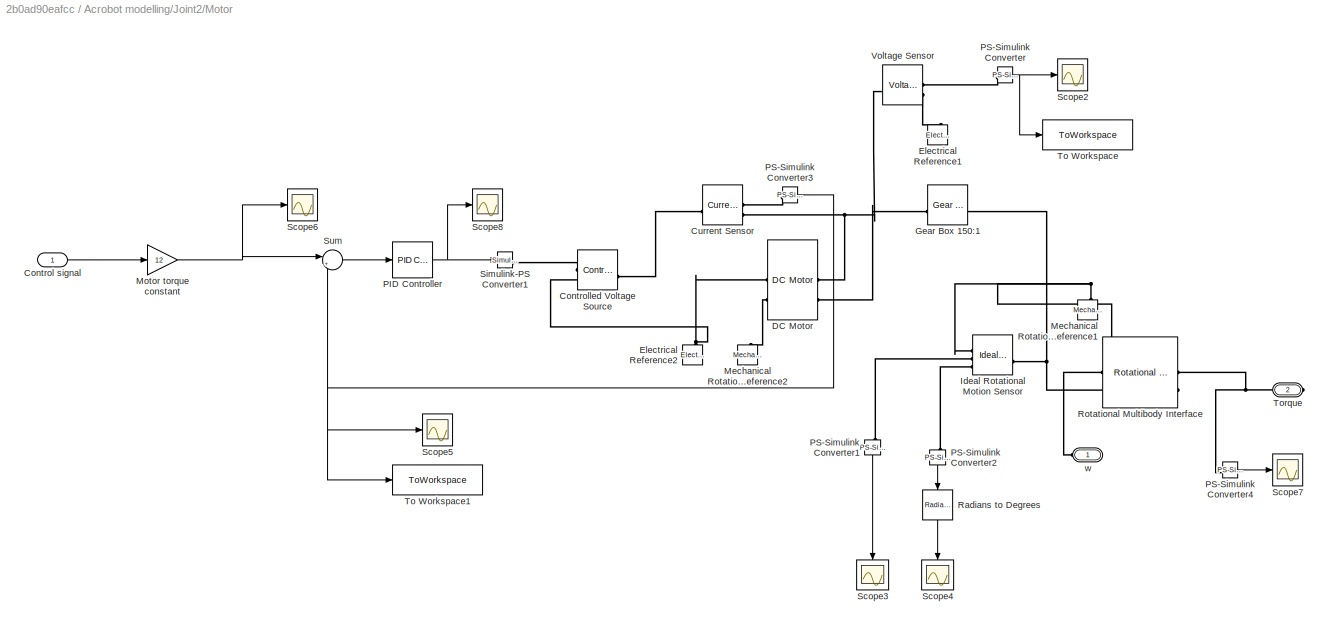
BLOCK [SubSystem] Acrobot modelling/Joint2/Motor
  PortSchema = {"entries":[{"content":{"sides":[{"content":{"connectorIds":["In1"]},"type":"ConnectorPlacement.EquallySpacedRectSide","uuid":"24b8e226-4068-4219-a8af-f3d145f3dec0"},{"content":{"connectorIds":["RConn1"],"side":"RIGHT"},"type":"ConnectorPlacement.EquallySpacedRectSide","uuid":"4517f77c-9e73-4367-a235-f17115b18bb9"},{"content":{"connectorIds":["LConn1"],"side":"TOP"},"type":"ConnectorPlacement.Equa...<+250ch>
BLOCK [Inport] Acrobot modelling/Joint2/Motor/Control signal
BLOCK [Reference] Acrobot modelling/Joint2/Motor/Controlled Voltage Source  REF=fl_lib/Electrical/Electrical Sources/Controlled Voltage
Source
  SourceBlock = fl_lib/Electrical/Electrical Sources/Controlled Voltage\nSource
  SourceType = Controlled Voltage\nSource
BLOCK [Reference] Acrobot modelling/Joint2/Motor/Current Sensor  REF=fl_lib/Electrical/Electrical Sensors/Current Sensor
  SourceBlock = fl_lib/Electrical/Electrical Sensors/Current Sensor
  SourceType = Current Sensor
BLOCK [Reference] Acrobot modelling/Joint2/Motor/DC Motor  REF=ee_lib/Electromechanical/Brushed Motors/DC Motor
  SourceBlock = ee_lib/Electromechanical/Brushed Motors/DC Motor
  SourceType = DC Motor
BLOCK [Reference] Acrobot modelling/Joint2/Motor/Electrical Reference1  REF=fl_lib/Electrical/Electrical Elements/Electrical Reference
  NameLocation = right
  SourceBlock = fl_lib/Electrical/Electrical Elements/Electrical Reference
  SourceType = Electrical Reference
BLOCK [Reference] Acrobot modelling/Joint2/Motor/Electrical Reference2  REF=fl_lib/Electrical/Electrical Elements/Electrical Reference
  NameLocation = right
  SourceBlock = fl_lib/Electrical/Electrical Elements/Electrical Reference
  SourceType = Electrical Reference
BLOCK [Reference] Acrobot modelling/Joint2/Motor/Gear Box 150:1  REF=fl_lib/Mechanical/Mechanisms/Gear Box
  SourceBlock = fl_lib/Mechanical/Mechanisms/Gear Box
  SourceType = Gear Box
BLOCK [Reference] Acrobot modelling/Joint2/Motor/Ideal Rotational Motion Sensor  REF=fl_lib/Mechanical/Mechanical Sensors/Ideal Rotational
Motion Sensor
  NameLocation = top
  SourceBlock = fl_lib/Mechanical/Mechanical Sensors/Ideal Rotational\nMotion Sensor
  SourceType = Ideal Rotational\nMotion Sensor
BLOCK [Reference] Acrobot modelling/Joint2/Motor/Mechanical Rotational Reference1  REF=fl_lib/Mechanical/Rotational Elements/Mechanical
Rotational Reference
  NameLocation = right
  SourceBlock = fl_lib/Mechanical/Rotational Elements/Mechanical\nRotational Reference
  SourceType = Mechanical\nRotational Reference
BLOCK [Reference] Acrobot modelling/Joint2/Motor/Mechanical Rotational Reference2  REF=fl_lib/Mechanical/Rotational Elements/Mechanical
Rotational Reference
  NameLocation = right
  SourceBlock = fl_lib/Mechanical/Rotational Elements/Mechanical\nRotational Reference
  SourceType = Mechanical\nRotational Reference
BLOCK [Gain] Acrobot modelling/Joint2/Motor/Motor torque constant
  Gain = 12
BLOCK [Reference] Acrobot modelling/Joint2/Motor/PID Controller  REF=slpidlib/PID Controller
  LibrarySourceBlock = simulink/Continuous/PID Controller
  SourceBlock = slpidlib/PID Controller
  SourceType = PID 1dof
BLOCK [Reference] Acrobot modelling/Joint2/Motor/PS-Simulink Converter  REF=nesl_utility/PS-Simulink
Converter
  SourceBlock = nesl_utility/PS-Simulink\nConverter
  SourceType = PS-Simulink\nConverter
BLOCK [Reference] Acrobot modelling/Joint2/Motor/PS-Simulink Converter1  REF=nesl_utility/PS-Simulink
Converter
  NameLocation = left
  SourceBlock = nesl_utility/PS-Simulink\nConverter
  SourceType = PS-Simulink\nConverter
BLOCK [Reference] Acrobot modelling/Joint2/Motor/PS-Simulink Converter2  REF=nesl_utility/PS-Simulink
Converter
  NameLocation = left
  SourceBlock = nesl_utility/PS-Simulink\nConverter
  SourceType = PS-Simulink\nConverter
BLOCK [Reference] Acrobot modelling/Joint2/Motor/PS-Simulink Converter3  REF=nesl_utility/PS-Simulink
Converter
  SourceBlock = nesl_utility/PS-Simulink\nConverter
  SourceType = PS-Simulink\nConverter
BLOCK [Reference] Acrobot modelling/Joint2/Motor/PS-Simulink Converter4  REF=nesl_utility/PS-Simulink
Converter
  SourceBlock = nesl_utility/PS-Simulink\nConverter
  SourceType = PS-Simulink\nConverter
BLOCK [Reference] Acrobot modelling/Joint2/Motor/Radians to Degrees  REF=simulink_extras/Transformations/Radians
to Degrees
  NameLocation = left
  SourceBlock = simulink_extras/Transformations/Radians\nto Degrees
  SourceType = RadiansToDegrees
BLOCK [Reference] Acrobot modelling/Joint2/Motor/Rotational Multibody Interface  REF=fl_lib/Mechanical/Multibody Interfaces/Rotational Multibody
Interface
  NameLocation = top
  SourceBlock = fl_lib/Mechanical/Multibody Interfaces/Rotational Multibody\nInterface
  SourceType = Rotational Multibody\nInterface
BLOCK [Scope] Acrobot modelling/Joint2/Motor/Scope2
  Floating = off
  NumInputPorts = 1
  ScopeSpecificationString = Simulink.scopes.TimeScopeBlockCfg('CurrentConfiguration', extmgr.ConfigurationSet(extmgr.Configuration('Core','General UI',true),extmgr.Configuration('Core','Source UI',true),extmgr.Configuration('Sources','WiredSimulink',true,'DataLoggingVariableName','ScopeData3'),extmgr.Configuration('Visuals','Time Domain',true,'SerializedDisplays',{struct('MinYLimReal','-73.96468','MaxYLimReal','279.58023','Y...<+1463ch>
BLOCK [Scope] Acrobot modelling/Joint2/Motor/Scope3
  Floating = off
  NameLocation = left
  NumInputPorts = 1
  ScopeSpecificationString = Simulink.scopes.TimeScopeBlockCfg('CurrentConfiguration', extmgr.ConfigurationSet(extmgr.Configuration('Core','General UI',true),extmgr.Configuration('Core','Source UI',true),extmgr.Configuration('Sources','WiredSimulink',true,'DataLoggingVariableName','ScopeData4'),extmgr.Configuration('Visuals','Time Domain',true,'SerializedDisplays',{struct('MinYLimReal','-8.07243','MaxYLimReal','8.07278','YLab...<+1454ch>
BLOCK [Scope] Acrobot modelling/Joint2/Motor/Scope4
  Floating = off
  NameLocation = left
  NumInputPorts = 1
  ScopeSpecificationString = Simulink.scopes.TimeScopeBlockCfg('CurrentConfiguration', extmgr.ConfigurationSet(extmgr.Configuration('Core','General UI',true),extmgr.Configuration('Core','Source UI',true),extmgr.Configuration('Sources','WiredSimulink',true,'DataLoggingVariableName','ScopeData5'),extmgr.Configuration('Visuals','Time Domain',true,'SerializedDisplays',{struct('MinYLimReal','-65.97732','MaxYLimReal','65.96605','YL...<+1456ch>
BLOCK [Scope] Acrobot modelling/Joint2/Motor/Scope5
  Floating = off
  NumInputPorts = 1
  ScopeSpecificationString = Simulink.scopes.TimeScopeBlockCfg('CurrentConfiguration', extmgr.ConfigurationSet(extmgr.Configuration('Core','General UI',true),extmgr.Configuration('Core','Source UI',true),extmgr.Configuration('Sources','WiredSimulink',true,'DataLoggingVariableName','ScopeData4'),extmgr.Configuration('Visuals','Time Domain',true,'SerializedDisplays',{struct('MinYLimReal','-12.39324','MaxYLimReal','12.54736','YL...<+1460ch>
BLOCK [Scope] Acrobot modelling/Joint2/Motor/Scope6
  Floating = off
  NumInputPorts = 1
  ScopeSpecificationString = Simulink.scopes.TimeScopeBlockCfg('CurrentConfiguration', extmgr.ConfigurationSet(extmgr.Configuration('Core','General UI',true),extmgr.Configuration('Core','Source UI',true),extmgr.Configuration('Sources','WiredSimulink',true,'DataLoggingVariableName','ScopeData3'),extmgr.Configuration('Visuals','Time Domain',true,'SerializedDisplays',{struct('MinYLimReal','-21.44504','MaxYLimReal','15.95007','YL...<+1459ch>
BLOCK [Scope] Acrobot modelling/Joint2/Motor/Scope7
  Floating = off
  NumInputPorts = 1
  ScopeSpecificationString = Simulink.scopes.TimeScopeBlockCfg('CurrentConfiguration', extmgr.ConfigurationSet(extmgr.Configuration('Core','General UI',true),extmgr.Configuration('Core','Source UI',true),extmgr.Configuration('Sources','WiredSimulink',true,'DataLoggingVariableName','ScopeData1'),extmgr.Configuration('Visuals','Time Domain',true,'SerializedDisplays',{struct('MinYLimReal','-1.29614','MaxYLimReal','1.29158','YLab...<+1454ch>
BLOCK [Scope] Acrobot modelling/Joint2/Motor/Scope8
  Floating = off
  NumInputPorts = 1
  ScopeSpecificationString = Simulink.scopes.TimeScopeBlockCfg('CurrentConfiguration', extmgr.ConfigurationSet(extmgr.Configuration('Core','General UI',true),extmgr.Configuration('Core','Source UI',true),extmgr.Configuration('Sources','WiredSimulink',true,'DataLoggingVariableName','ScopeData3'),extmgr.Configuration('Visuals','Time Domain',true,'SerializedDisplays',{struct('MinYLimReal','-73.96468','MaxYLimReal','279.58023','Y...<+1456ch>
BLOCK [Reference] Acrobot modelling/Joint2/Motor/Simulink-PS Converter1  REF=nesl_utility/Simulink-PS
Converter
  SourceBlock = nesl_utility/Simulink-PS\nConverter
  SourceType = Simulink-PS\nConverter
BLOCK [Sum] Acrobot modelling/Joint2/Motor/Sum
  Inputs = |+-
BLOCK [ToWorkspace] Acrobot modelling/Joint2/Motor/To Workspace
  FixptAsFi = on
  MaxDataPoints = inf
  SampleTime = -1
  SaveFormat = Timeseries
  VariableName = motor_feszultseg
BLOCK [ToWorkspace] Acrobot modelling/Joint2/Motor/To Workspace1
  FixptAsFi = on
  MaxDataPoints = inf
  SampleTime = -1
  SaveFormat = Timeseries
  VariableName = motor_aram
BLOCK [PMIOPort] Acrobot modelling/Joint2/Motor/Torque
  Port = 2
  Side = Right
BLOCK [Reference] Acrobot modelling/Joint2/Motor/Voltage Sensor  REF=fl_lib/Electrical/Electrical Sensors/Voltage Sensor
  NameLocation = top
  SourceBlock = fl_lib/Electrical/Electrical Sensors/Voltage Sensor
  SourceType = Voltage Sensor
BLOCK [PMIOPort] Acrobot modelling/Joint2/Motor/w
  NameLocation = top
  Side = Left
BLOCK [Reference] Acrobot modelling/Joint2/PS-Simulink Converter1  REF=nesl_utility/PS-Simulink
Converter
  SourceBlock = nesl_utility/PS-Simulink\nConverter
  SourceType = PS-Simulink\nConverter
BLOCK [Reference] Acrobot modelling/Joint2/PS-Simulink Converter4  REF=nesl_utility/PS-Simulink
Converter
  SourceBlock = nesl_utility/PS-Simulink\nConverter
  SourceType = PS-Simulink\nConverter
BLOCK [SubSystem] Acrobot modelling/Joint2/Revolute Joint2
  PortSchema = {"entries":[{"content":{"sides":[{"content":{"connectorIds":["LConn1","LConn2"]},"type":"ConnectorPlacement.EquallySpacedRectSide","uuid":"2ccb2bad-7cbb-40a9-9333-bd865504c4fd"},{"content":{"connectorIds":["RConn1","Out1","Out2","RConn2"],"side":"RIGHT"},"type":"ConnectorPlacement.EquallySpacedRectSide","uuid":"454371e6-c858-42c7-af6c-c91ea91dadea"},{"content":{"connectorIds":[],"side":"TOP"},"typ...<+565ch>
BLOCK [PMIOPort] Acrobot modelling/Joint2/Revolute Joint2/In
  Port = 2
  Side = Left
BLOCK [Reference] Acrobot modelling/Joint2/Revolute Joint2/Joint2  REF=sm_lib/Joints/Revolute Joint
  SourceBlock = sm_lib/Joints/Revolute Joint
  SourceType = Revolute Joint
BLOCK [PMIOPort] Acrobot modelling/Joint2/Revolute Joint2/Out
  Port = 4
  Side = Right
BLOCK [Reference] Acrobot modelling/Joint2/Revolute Joint2/PS-Simulink Converter  REF=nesl_utility/PS-Simulink
Converter
  SourceBlock = nesl_utility/PS-Simulink\nConverter
  SourceType = PS-Simulink\nConverter
BLOCK [Reference] Acrobot modelling/Joint2/Revolute Joint2/PS-Simulink Converter1  REF=nesl_utility/PS-Simulink
Converter
  SourceBlock = nesl_utility/PS-Simulink\nConverter
  SourceType = PS-Simulink\nConverter
BLOCK [Reference] Acrobot modelling/Joint2/Revolute Joint2/Radians to Degrees  REF=simulink_extras/Transformations/Radians
to Degrees
  SourceBlock = simulink_extras/Transformations/Radians\nto Degrees
  SourceType = RadiansToDegrees
BLOCK [Scope] Acrobot modelling/Joint2/Revolute Joint2/Scope3
  Floating = off
  NumInputPorts = 1
  ScopeSpecificationString = Simulink.scopes.TimeScopeBlockCfg('CurrentConfiguration', extmgr.ConfigurationSet(extmgr.Configuration('Core','General UI',true),extmgr.Configuration('Core','Source UI',true),extmgr.Configuration('Sources','WiredSimulink',true,'DataLoggingVariableName','ScopeData1'),extmgr.Configuration('Visuals','Time Domain',true,'SerializedDisplays',{struct('MinYLimReal','-66.03367','MaxYLimReal','68.08787','YL...<+1491ch>
BLOCK [ToWorkspace] Acrobot modelling/Joint2/Revolute Joint2/To Workspace6
  FixptAsFi = on
  MaxDataPoints = inf
  SampleTime = -1
  SaveFormat = Timeseries
  VariableName = q2_v
BLOCK [ToWorkspace] Acrobot modelling/Joint2/Revolute Joint2/To Workspace7
  FixptAsFi = on
  MaxDataPoints = inf
  SampleTime = -1
  SaveFormat = Timeseries
  VariableName = dq2_v
BLOCK [PMIOPort] Acrobot modelling/Joint2/Revolute Joint2/Torque
  Side = Left
BLOCK [Outport] Acrobot modelling/Joint2/Revolute Joint2/dq2
  Port = 2
BLOCK [Outport] Acrobot modelling/Joint2/Revolute Joint2/q2
BLOCK [PMIOPort] Acrobot modelling/Joint2/Revolute Joint2/w out
  Port = 3
  Side = Right
BLOCK [Scope] Acrobot modelling/Joint2/Scope1
  Floating = off
  NumInputPorts = 1
  ScopeSpecificationString = Simulink.scopes.TimeScopeBlockCfg('CurrentConfiguration', extmgr.ConfigurationSet(extmgr.Configuration('Core','General UI',true),extmgr.Configuration('Core','Source UI',true),extmgr.Configuration('Sources','WiredSimulink',true,'DataLoggingVariableName','ScopeData2'),extmgr.Configuration('Visuals','Time Domain',true,'SerializedDisplays',{struct('MinYLimReal','-6.75688','MaxYLimReal','6.73684','YLab...<+1454ch>
BLOCK [Scope] Acrobot modelling/Joint2/Scope7
  Floating = off
  NumInputPorts = 2
  ScopeSpecificationString = Simulink.scopes.TimeScopeBlockCfg('CurrentConfiguration', extmgr.ConfigurationSet(extmgr.Configuration('Core','General UI',true),extmgr.Configuration('Core','Source UI',true),extmgr.Configuration('Sources','WiredSimulink',true,'DataLoggingVariableName','ScopeData2'),extmgr.Configuration('Visuals','Time Domain',true,'SerializedDisplays',{struct('MinYLimReal','-1.40137','MaxYLimReal','1.41902','YLab...<+1444ch>
BLOCK [ToWorkspace] Acrobot modelling/Joint2/To Workspace
  FixptAsFi = on
  MaxDataPoints = inf
  SampleTime = -1
  SaveFormat = Timeseries
  VariableName = valos_torque
BLOCK [Outport] Acrobot modelling/Joint2/dq2
  Port = 2
BLOCK [Outport] Acrobot modelling/Joint2/q2
BLOCK [SubSystem] Acrobot modelling/Link1
BLOCK [Reference] Acrobot modelling/Link1/Also  REF=sm_lib/Body Elements/Brick Solid
  SourceBlock = sm_lib/Body Elements/Brick Solid
  SourceType = Brick Solid
BLOCK [PMIOPort] Acrobot modelling/Link1/B
  Side = Left
BLOCK [Reference] Acrobot modelling/Link1/Brick Solid2  REF=sm_lib/Body Elements/Brick Solid
  SourceBlock = sm_lib/Body Elements/Brick Solid
  SourceType = Brick Solid
BLOCK [Reference] Acrobot modelling/Link1/Felso  REF=sm_lib/Body Elements/Brick Solid
  SourceBlock = sm_lib/Body Elements/Brick Solid
  SourceType = Brick Solid
BLOCK [Reference] Acrobot modelling/Link1/Link1  REF=sm_lib/Body Elements/Cylindrical Solid
  NameLocation = right
  SourceBlock = sm_lib/Body Elements/Cylindrical Solid
  SourceType = Cylindrical Solid
BLOCK [PMIOPort] Acrobot modelling/Link1/R
  Port = 2
  Side = Right
BLOCK [Reference] Acrobot modelling/Link1/Rigid Transform1  REF=sm_lib/Frames and
Transforms/Rigid
Transform
  SourceBlock = sm_lib/Frames and\nTransforms/Rigid\nTransform
  SourceType = Rigid\nTransform
BLOCK [Reference] Acrobot modelling/Link1/Rigid Transform10  REF=sm_lib/Frames and
Transforms/Rigid
Transform
  NameLocation = top
  SourceBlock = sm_lib/Frames and\nTransforms/Rigid\nTransform
  SourceType = Rigid\nTransform
BLOCK [Reference] Acrobot modelling/Link1/Rigid Transform12  REF=sm_lib/Frames and
Transforms/Rigid
Transform
  NameLocation = left
  SourceBlock = sm_lib/Frames and\nTransforms/Rigid\nTransform
  SourceType = Rigid\nTransform
BLOCK [Reference] Acrobot modelling/Link1/Rigid Transform2  REF=sm_lib/Frames and
Transforms/Rigid
Transform
  NameLocation = top
  SourceBlock = sm_lib/Frames and\nTransforms/Rigid\nTransform
  SourceType = Rigid\nTransform
BLOCK [Reference] Acrobot modelling/Link1/Rigid Transform3  REF=sm_lib/Frames and
Transforms/Rigid
Transform
  NameLocation = top
  SourceBlock = sm_lib/Frames and\nTransforms/Rigid\nTransform
  SourceType = Rigid\nTransform
BLOCK [Reference] Acrobot modelling/Link1/Rigid Transform4  REF=sm_lib/Frames and
Transforms/Rigid
Transform
  NameLocation = top
  SourceBlock = sm_lib/Frames and\nTransforms/Rigid\nTransform
  SourceType = Rigid\nTransform
BLOCK [Reference] Acrobot modelling/Link1/Rigid Transform5  REF=sm_lib/Frames and
Transforms/Rigid
Transform
  NameLocation = top
  SourceBlock = sm_lib/Frames and\nTransforms/Rigid\nTransform
  SourceType = Rigid\nTransform
BLOCK [Reference] Acrobot modelling/Link1/Rigid Transform6  REF=sm_lib/Frames and
Transforms/Rigid
Transform
  NameLocation = top
  SourceBlock = sm_lib/Frames and\nTransforms/Rigid\nTransform
  SourceType = Rigid\nTransform
BLOCK [Reference] Acrobot modelling/Link1/Rigid Transform7  REF=sm_lib/Frames and
Transforms/Rigid
Transform
  NameLocation = top
  SourceBlock = sm_lib/Frames and\nTransforms/Rigid\nTransform
  SourceType = Rigid\nTransform
BLOCK [Reference] Acrobot modelling/Link1/Rigid Transform8  REF=sm_lib/Frames and
Transforms/Rigid
Transform
  NameLocation = top
  SourceBlock = sm_lib/Frames and\nTransforms/Rigid\nTransform
  SourceType = Rigid\nTransform
BLOCK [Reference] Acrobot modelling/Link1/Rigid Transform9  REF=sm_lib/Frames and
Transforms/Rigid
Transform
  NameLocation = top
  SourceBlock = sm_lib/Frames and\nTransforms/Rigid\nTransform
  SourceType = Rigid\nTransform
BLOCK [Reference] Acrobot modelling/Link1/Servo motor  REF=sm_lib/Body Elements/File Solid
  SourceBlock = sm_lib/Body Elements/File Solid
  SourceType = File Solid
BLOCK [Reference] Acrobot modelling/Link1/Trans Y  REF=sm_lib/Frames and
Transforms/Rigid
Transform
  SourceBlock = sm_lib/Frames and\nTransforms/Rigid\nTransform
  SourceType = Rigid\nTransform
BLOCK [Reference] Acrobot modelling/Link1/Trans Z1  REF=sm_lib/Frames and
Transforms/Rigid
Transform
  SourceBlock = sm_lib/Frames and\nTransforms/Rigid\nTransform
  SourceType = Rigid\nTransform
BLOCK [SubSystem] Acrobot modelling/Link2
BLOCK [PMIOPort] Acrobot modelling/Link2/B 
  Side = Left
BLOCK [Reference] Acrobot modelling/Link2/Brick Solid1  REF=sm_lib/Body Elements/Brick Solid
  SourceBlock = sm_lib/Body Elements/Brick Solid
  SourceType = Brick Solid
BLOCK [Reference] Acrobot modelling/Link2/Link2  REF=sm_lib/Body Elements/Cylindrical Solid
  NameLocation = right
  SourceBlock = sm_lib/Body Elements/Cylindrical Solid
  SourceType = Cylindrical Solid
BLOCK [PMIOPort] Acrobot modelling/Link2/R
  Port = 2
  Side = Right
BLOCK [Reference] Acrobot modelling/Link2/Rigid Transform1  REF=sm_lib/Frames and
Transforms/Rigid
Transform
  SourceBlock = sm_lib/Frames and\nTransforms/Rigid\nTransform
  SourceType = Rigid\nTransform
BLOCK [Reference] Acrobot modelling/Link2/Rigid Transform2  REF=sm_lib/Frames and
Transforms/Rigid
Transform
  NameLocation = top
  SourceBlock = sm_lib/Frames and\nTransforms/Rigid\nTransform
  SourceType = Rigid\nTransform
BLOCK [Reference] Acrobot modelling/Link2/Rigid Transform3  REF=sm_lib/Frames and
Transforms/Rigid
Transform
  NameLocation = left
  SourceBlock = sm_lib/Frames and\nTransforms/Rigid\nTransform
  SourceType = Rigid\nTransform
BLOCK [Reference] Acrobot modelling/Link2/Rigid Transform4  REF=sm_lib/Frames and
Transforms/Rigid
Transform
  NameLocation = top
  SourceBlock = sm_lib/Frames and\nTransforms/Rigid\nTransform
  SourceType = Rigid\nTransform
BLOCK [Reference] Acrobot modelling/Link2/Weigth  REF=sm_lib/Body Elements/Brick Solid
  SourceBlock = sm_lib/Body Elements/Brick Solid
  SourceType = Brick Solid
BLOCK [SubSystem] Acrobot modelling/MATLAB Function
  ErrorFcn = Stateflow.Translate.translate
  LibrarySourceBlock = simulink/User-Defined\nFunctions/MATLAB Function
  PermitHierarchicalResolution = ExplicitOnly
  SFBlockType = MATLAB Function
  TreatAsAtomicUnit = on
BLOCK [Demux] Acrobot modelling/MATLAB Function/ Demux 
  Outputs = 1
BLOCK [S-Function] Acrobot modelling/MATLAB Function/ SFunction 
  EnableBusSupport = on
  FunctionName = sf_sfun
  PortCounts = [4 3]
  SFcnIsStateOwnerBlock = off
  SFunctionDeploymentMode = off
  Tag = Stateflow S-Function 4
BLOCK [Terminator] Acrobot modelling/MATLAB Function/ Terminator 
BLOCK [Outport] Acrobot modelling/MATLAB Function/E
BLOCK [Outport] Acrobot modelling/MATLAB Function/E_Et
  Port = 2
BLOCK [Inport] Acrobot modelling/MATLAB Function/dq1
  Port = 2
BLOCK [Inport] Acrobot modelling/MATLAB Function/dq2
  Port = 4
BLOCK [Inport] Acrobot modelling/MATLAB Function/q1
BLOCK [Inport] Acrobot modelling/MATLAB Function/q2
  Port = 3
BLOCK [Reference] Acrobot modelling/Mechanism Configuration  REF=sm_lib/Utilities/Mechanism
Configuration
  SourceBlock = sm_lib/Utilities/Mechanism\nConfiguration
  SourceType = Mechanism\nConfiguration
BLOCK [SubSystem] Acrobot modelling/Noise
BLOCK [Sum] Acrobot modelling/Noise/Add
  IconShape = rectangular
  Inputs = +-
BLOCK [Sum] Acrobot modelling/Noise/Add1
  IconShape = rectangular
  Inputs = +-
BLOCK [Sum] Acrobot modelling/Noise/Add2
  IconShape = rectangular
  Inputs = ++++
BLOCK [Sum] Acrobot modelling/Noise/Add3
  IconShape = rectangular
  Inputs = +-
BLOCK [Reference] Acrobot modelling/Noise/Band-Limited White Noise  REF=simulink/Sources/Band-Limited
White Noise
  SourceBlock = simulink/Sources/Band-Limited\nWhite Noise
  SourceType = Band-Limited White Noise.
BLOCK [Constant] Acrobot modelling/Noise/Constant
  Value = 0
BLOCK [Reference] Acrobot modelling/Noise/External Force and Torque  REF=sm_lib/Forces and
Torques/External Force
and Torque
  SourceBlock = sm_lib/Forces and\nTorques/External Force\nand Torque
  SourceType = External Force\nand Torque
BLOCK [Gain] Acrobot modelling/Noise/Gain
  Gain = 0.02
BLOCK [ManualSwitch] Acrobot modelling/Noise/Manual Switch
BLOCK [ManualSwitch] Acrobot modelling/Noise/Manual Switch1
BLOCK [PMIOPort] Acrobot modelling/Noise/Noise
  Side = Left
BLOCK [Reference] Acrobot modelling/Noise/Simulink-PS Converter  REF=nesl_utility/Simulink-PS
Converter
  SourceBlock = nesl_utility/Simulink-PS\nConverter
  SourceType = Simulink-PS\nConverter
BLOCK [Step] Acrobot modelling/Noise/Step
  After = 0.3
  SampleTime = 0
  Time = 2.5
BLOCK [Step] Acrobot modelling/Noise/Step1
  After = 0.3
  SampleTime = 0
  Time = 2.55
BLOCK [Step] Acrobot modelling/Noise/Step2
  After = -0.3
  SampleTime = 0
  Time = 3.5
BLOCK [Step] Acrobot modelling/Noise/Step3
  After = -0.3
  SampleTime = 0
  Time = 3.55
BLOCK [Step] Acrobot modelling/Noise/Step4
  After = 1.8
  SampleTime = 0
  Time = 5
BLOCK [Step] Acrobot modelling/Noise/Step5
  After = 1.8
  SampleTime = 0
  Time = 5.01
BLOCK [ToWorkspace] Acrobot modelling/Noise/To Workspace
  FixptAsFi = on
  MaxDataPoints = inf
  SampleTime = -1
  SaveFormat = Timeseries
  VariableName = noise
BLOCK [Scope] Acrobot modelling/Noise/zavar
  Floating = off
  NumInputPorts = 1
  ScopeSpecificationString = Simulink.scopes.TimeScopeBlockCfg('CurrentConfiguration', extmgr.ConfigurationSet(extmgr.Configuration('Core','General UI',true),extmgr.Configuration('Core','Source UI',true),extmgr.Configuration('Sources','WiredSimulink',true,'DataLoggingVariableName','ScopeData2'),extmgr.Configuration('Visuals','Time Domain',true,'SerializedDisplays',{struct('MinYLimReal','-0.29989','MaxYLimReal','0.31047','YLab...<+1445ch>
BLOCK [Scope] Acrobot modelling/Noise/zavar1
  Floating = off
  NumInputPorts = 1
  ScopeSpecificationString = Simulink.scopes.TimeScopeBlockCfg('CurrentConfiguration', extmgr.ConfigurationSet(extmgr.Configuration('Core','General UI',true),extmgr.Configuration('Core','Source UI',true),extmgr.Configuration('Sources','WiredSimulink',true,'DataLoggingVariableName','ScopeData3'),extmgr.Configuration('Visuals','Time Domain',true,'SerializedDisplays',{struct('MinYLimReal','-0.29989','MaxYLimReal','0.31047','YLab...<+1436ch>
BLOCK [Scope] Acrobot modelling/Scope1
  Floating = off
  NumInputPorts = 1
  ScopeSpecificationString = Simulink.scopes.TimeScopeBlockCfg('CurrentConfiguration', extmgr.ConfigurationSet(extmgr.Configuration('Core','General UI',true),extmgr.Configuration('Core','Source UI',true),extmgr.Configuration('Sources','WiredSimulink',true,'DataLoggingVariableName','ScopeData2'),extmgr.Configuration('Visuals','Time Domain',true,'SerializedDisplays',{struct('MinYLimReal','-1.45558','MaxYLimReal','1.56096','YLab...<+1488ch>
BLOCK [Scope] Acrobot modelling/Scope3
  Floating = off
  NumInputPorts = 1
  ScopeSpecificationString = Simulink.scopes.TimeScopeBlockCfg('CurrentConfiguration', extmgr.ConfigurationSet(extmgr.Configuration('Core','General UI',true),extmgr.Configuration('Core','Source UI',true),extmgr.Configuration('Sources','WiredSimulink',true,'DataLoggingVariableName','ScopeData3'),extmgr.Configuration('Visuals','Time Domain',true,'SerializedDisplays',{struct('MinYLimReal','-2.61725','MaxYLimReal','0.4188','YLabe...<+1489ch>
BLOCK [SubSystem] Acrobot modelling/Sensors
BLOCK [Reference] Acrobot modelling/Sensors/Inertia Sensor  REF=sm_lib/Body Elements/Inertia Sensor
  SourceBlock = sm_lib/Body Elements/Inertia Sensor
  SourceType = Inertia Sensor
BLOCK [Reference] Acrobot modelling/Sensors/Inertia Sensor1  REF=sm_lib/Body Elements/Inertia Sensor
  SourceBlock = sm_lib/Body Elements/Inertia Sensor
  SourceType = Inertia Sensor
BLOCK [PMIOPort] Acrobot modelling/Sensors/Link 1
  Side = Left
BLOCK [PMIOPort] Acrobot modelling/Sensors/Link 2
  Port = 2
  Side = Right
BLOCK [Reference] Acrobot modelling/Sensors/PS-Simulink Converter  REF=nesl_utility/PS-Simulink
Converter
  SourceBlock = nesl_utility/PS-Simulink\nConverter
  SourceType = PS-Simulink\nConverter
BLOCK [Reference] Acrobot modelling/Sensors/PS-Simulink Converter1  REF=nesl_utility/PS-Simulink
Converter
  SourceBlock = nesl_utility/PS-Simulink\nConverter
  SourceType = PS-Simulink\nConverter
BLOCK [Reference] Acrobot modelling/Sensors/PS-Simulink Converter2  REF=nesl_utility/PS-Simulink
Converter
  SourceBlock = nesl_utility/PS-Simulink\nConverter
  SourceType = PS-Simulink\nConverter
BLOCK [Reference] Acrobot modelling/Sensors/PS-Simulink Converter3  REF=nesl_utility/PS-Simulink
Converter
  SourceBlock = nesl_utility/PS-Simulink\nConverter
  SourceType = PS-Simulink\nConverter
BLOCK [Reference] Acrobot modelling/Sensors/PS-Simulink Converter4  REF=nesl_utility/PS-Simulink
Converter
  SourceBlock = nesl_utility/PS-Simulink\nConverter
  SourceType = PS-Simulink\nConverter
BLOCK [Reference] Acrobot modelling/Sensors/PS-Simulink Converter5  REF=nesl_utility/PS-Simulink
Converter
  SourceBlock = nesl_utility/PS-Simulink\nConverter
  SourceType = PS-Simulink\nConverter
BLOCK [ToWorkspace] Acrobot modelling/Sensors/To Workspace1
  FixptAsFi = on
  MaxDataPoints = inf
  SampleTime = -1
  SaveFormat = Timeseries
  VariableName = J1matrix
BLOCK [ToWorkspace] Acrobot modelling/Sensors/To Workspace2
  FixptAsFi = on
  MaxDataPoints = inf
  SampleTime = -1
  SaveFormat = Timeseries
  VariableName = m1
BLOCK [ToWorkspace] Acrobot modelling/Sensors/To Workspace3
  FixptAsFi = on
  MaxDataPoints = inf
  SampleTime = -1
  SaveFormat = Timeseries
  VariableName = lc1
BLOCK [ToWorkspace] Acrobot modelling/Sensors/To Workspace4
  FixptAsFi = on
  MaxDataPoints = inf
  SampleTime = -1
  SaveFormat = Timeseries
  VariableName = m2
BLOCK [ToWorkspace] Acrobot modelling/Sensors/To Workspace5
  FixptAsFi = on
  MaxDataPoints = inf
  SampleTime = -1
  SaveFormat = Timeseries
  VariableName = J2matrix
BLOCK [ToWorkspace] Acrobot modelling/Sensors/To Workspace6
  FixptAsFi = on
  MaxDataPoints = inf
  SampleTime = -1
  SaveFormat = Timeseries
  VariableName = lc2
BLOCK [Reference] Acrobot modelling/Solver Configuration1  REF=nesl_utility/Solver
Configuration
  SourceBlock = nesl_utility/Solver\nConfiguration
  SourceType = Solver\nConfiguration
BLOCK [ToWorkspace] Acrobot modelling/To Workspace
  FixptAsFi = on
  MaxDataPoints = inf
  SampleTime = -1
  SaveFormat = Timeseries
  VariableName = E
BLOCK [Reference] Acrobot modelling/World Frame  REF=sm_lib/Frames and
Transforms/World Frame
  SourceBlock = sm_lib/Frames and\nTransforms/World Frame
  SourceType = World Frame
ANNOTATION Acrobot modelling/Controller: q1 q2 dq1 dq2
ANNOTATION Acrobot modelling/Controller/Controller/LQR Control: -pi eltolas A linearizalt szabalyozashoz csak itt meg akar modulot probalgatni
ANNOTATION Acrobot modelling/Controller/Controller/LQR Control: Balancing - linearizalt rendszerre
ANNOTATION Acrobot modelling/Controller/Controller/LQR Control: q1 q2 dq1 dq2
ANNOTATION Acrobot modelling/Controller/Controller/Swing up controller: Kipróbűlni atan függvényt arduinóra is
ANNOTATION Acrobot modelling/Controller/Controller/Swing up controller: alfa = 90 erositesre eloirt szog
ANNOTATION Acrobot modelling/Controller/Controller/Swing up controller: itt egy-volt a szorzo kp 450 kd 0.3
ANNOTATION Acrobot modelling/Controller/Controller/Switch Logic: 1.2 kezdetben sw off
ANNOTATION Acrobot modelling/Controller/Controller/Switch Logic: a sebessegek 0.1-el
ANNOTATION Acrobot modelling/Joint 1/Decoder: Arduino csinalja Sample Time: Arduino mintavetelezesi ideje
ANNOTATION Acrobot modelling/Joint 1/Decoder: ezeket is kimenteni, ezek lesznek a diszkretek, mindenkepp
ANNOTATION Acrobot modelling/Joint2: Itt ki lehet kötni a motrot, akkor direktbe megy a torque a joint2-re
ANNOTATION Acrobot modelling/Joint2: dq2
ANNOTATION Acrobot modelling/Joint2: torque
NET Acrobot modelling/Controller/Controller/Index Vector:1 -> Acrobot modelling/Controller/Controller/To Workspace:1, Acrobot modelling/Controller/Controller/u:1
LINE Acrobot modelling/Controller/Controller/LQR Control/Bias:1 -> Acrobot modelling/Controller/Controller/LQR Control/Wrap Angle pi-pi:1
LINE Acrobot modelling/Controller/Controller/LQR Control/Demux1:1 -> Acrobot modelling/Controller/Controller/LQR Control/Bias:1
LINE Acrobot modelling/Controller/Controller/LQR Control/Demux1:2 -> Acrobot modelling/Controller/Controller/LQR Control/Mux1:2
LINE Acrobot modelling/Controller/Controller/LQR Control/Demux1:3 -> Acrobot modelling/Controller/Controller/LQR Control/Mux1:3
LINE Acrobot modelling/Controller/Controller/LQR Control/Demux1:4 -> Acrobot modelling/Controller/Controller/LQR Control/Mux1:4
NET Acrobot modelling/Controller/Controller/LQR Control/Gain:1 -> Acrobot modelling/Controller/Controller/LQR Control/Control signal:1, Acrobot modelling/Controller/Controller/LQR Control/Scope2:1
NET Acrobot modelling/Controller/Controller/LQR Control/Mux1:1 -> Acrobot modelling/Controller/Controller/LQR Control/Gain:1, Acrobot modelling/Controller/Controller/LQR Control/Scope1:1
LINE Acrobot modelling/Controller/Controller/LQR Control/States:1 -> Acrobot modelling/Controller/Controller/LQR Control/Demux1:1
LINE Acrobot modelling/Controller/Controller/LQR Control/Wrap Angle pi-pi/Add1:1 -> Acrobot modelling/Controller/Controller/LQR Control/Wrap Angle pi-pi/q1:1
LINE Acrobot modelling/Controller/Controller/LQR Control/Wrap Angle pi-pi/Bias:1 -> Acrobot modelling/Controller/Controller/LQR Control/Wrap Angle pi-pi/Divide:1
LINE Acrobot modelling/Controller/Controller/LQR Control/Wrap Angle pi-pi/Constant2:1 -> Acrobot modelling/Controller/Controller/LQR Control/Wrap Angle pi-pi/Product:2
LINE Acrobot modelling/Controller/Controller/LQR Control/Wrap Angle pi-pi/Constant:1 -> Acrobot modelling/Controller/Controller/LQR Control/Wrap Angle pi-pi/Divide:2
LINE Acrobot modelling/Controller/Controller/LQR Control/Wrap Angle pi-pi/Divide:1 -> Acrobot modelling/Controller/Controller/LQR Control/Wrap Angle pi-pi/Floor:1
LINE Acrobot modelling/Controller/Controller/LQR Control/Wrap Angle pi-pi/Floor:1 -> Acrobot modelling/Controller/Controller/LQR Control/Wrap Angle pi-pi/Product:1
NET Acrobot modelling/Controller/Controller/LQR Control/Wrap Angle pi-pi/In1:1 -> Acrobot modelling/Controller/Controller/LQR Control/Wrap Angle pi-pi/Add1:1, Acrobot modelling/Controller/Controller/LQR Control/Wrap Angle pi-pi/Bias:1
LINE Acrobot modelling/Controller/Controller/LQR Control/Wrap Angle pi-pi/Product:1 -> Acrobot modelling/Controller/Controller/LQR Control/Wrap Angle pi-pi/Add1:2
LINE Acrobot modelling/Controller/Controller/LQR Control/Wrap Angle pi-pi:1 -> Acrobot modelling/Controller/Controller/LQR Control/Mux1:1
NET Acrobot modelling/Controller/Controller/LQR Control:1 -> Acrobot modelling/Controller/Controller/Index Vector:3, Acrobot modelling/Controller/Controller/Switch Logic:2
NET Acrobot modelling/Controller/Controller/States:1 -> Acrobot modelling/Controller/Controller/LQR Control:1, Acrobot modelling/Controller/Controller/Swing up controller:1, Acrobot modelling/Controller/Controller/Switch Logic:1
NET Acrobot modelling/Controller/Controller/Swing up controller/Add1:1 -> Acrobot modelling/Controller/Controller/Swing up controller/Control signal:1, Acrobot modelling/Controller/Controller/Swing up controller/Scope1:1
LINE Acrobot modelling/Controller/Controller/Swing up controller/Add:1 -> Acrobot modelling/Controller/Controller/Swing up controller/kp:1
LINE Acrobot modelling/Controller/Controller/Swing up controller/Demux1:1 -> Acrobot modelling/Controller/Controller/Swing up controller/Terminator:1
LINE Acrobot modelling/Controller/Controller/Swing up controller/Demux1:2 -> Acrobot modelling/Controller/Controller/Swing up controller/Add:2
LINE Acrobot modelling/Controller/Controller/Swing up controller/Demux1:3 -> Acrobot modelling/Controller/Controller/Swing up controller/Trigonometric Function:1
LINE Acrobot modelling/Controller/Controller/Swing up controller/Demux1:4 -> Acrobot modelling/Controller/Controller/Swing up controller/kd:1
NET Acrobot modelling/Controller/Controller/Swing up controller/Gain:1 -> Acrobot modelling/Controller/Controller/Swing up controller/Add:1, Acrobot modelling/Controller/Controller/Swing up controller/Scope:1
LINE Acrobot modelling/Controller/Controller/Swing up controller/States:1 -> Acrobot modelling/Controller/Controller/Swing up controller/Demux1:1
LINE Acrobot modelling/Controller/Controller/Swing up controller/Trigonometric Function:1 -> Acrobot modelling/Controller/Controller/Swing up controller/Gain:1
NET Acrobot modelling/Controller/Controller/Swing up controller/kd:1 -> Acrobot modelling/Controller/Controller/Swing up controller/Add1:2, Acrobot modelling/Controller/Controller/Swing up controller/Scope3:1
NET Acrobot modelling/Controller/Controller/Swing up controller/kp:1 -> Acrobot modelling/Controller/Controller/Swing up controller/Add1:1, Acrobot modelling/Controller/Controller/Swing up controller/Scope2:1
LINE Acrobot modelling/Controller/Controller/Swing up controller:1 -> Acrobot modelling/Controller/Controller/Index Vector:2
LINE Acrobot modelling/Controller/Controller/Switch Logic/Abs1:1 -> Acrobot modelling/Controller/Controller/Switch Logic/Sum:3
LINE Acrobot modelling/Controller/Controller/Switch Logic/Abs2:1 -> Acrobot modelling/Controller/Controller/Switch Logic/Sum:2
LINE Acrobot modelling/Controller/Controller/Switch Logic/Abs3:1 -> Acrobot modelling/Controller/Controller/Switch Logic/Sum:4
NET Acrobot modelling/Controller/Controller/Switch Logic/Abs4:1 -> Acrobot modelling/Controller/Controller/Switch Logic/Add:2, Acrobot modelling/Controller/Controller/Switch Logic/Scope3:1, Acrobot modelling/Controller/Controller/Switch Logic/Sum:5
NET Acrobot modelling/Controller/Controller/Switch Logic/Abs:1 -> Acrobot modelling/Controller/Controller/Switch Logic/Scope2:1, Acrobot modelling/Controller/Controller/Switch Logic/Sum:1
NET Acrobot modelling/Controller/Controller/Switch Logic/Add:1 -> Acrobot modelling/Controller/Controller/Switch Logic/Compare To Constant:1, Acrobot modelling/Controller/Controller/Switch Logic/Scope5:1
LINE Acrobot modelling/Controller/Controller/Switch Logic/Bias1:1 -> Acrobot modelling/Controller/Controller/Switch Logic/Wrap Angle pi-pi:1
LINE Acrobot modelling/Controller/Controller/Switch Logic/Compare To Constant:1 -> Acrobot modelling/Controller/Controller/Switch Logic/Logical Operator:2
LINE Acrobot modelling/Controller/Controller/Switch Logic/Constant:1 -> Acrobot modelling/Controller/Controller/Switch Logic/Manual Switch:1
LINE Acrobot modelling/Controller/Controller/Switch Logic/Demux1:1 -> Acrobot modelling/Controller/Controller/Switch Logic/Bias1:1
LINE Acrobot modelling/Controller/Controller/Switch Logic/Demux1:2 -> Acrobot modelling/Controller/Controller/Switch Logic/Abs2:1
LINE Acrobot modelling/Controller/Controller/Switch Logic/Demux1:3 -> Acrobot modelling/Controller/Controller/Switch Logic/Gain:1
LINE Acrobot modelling/Controller/Controller/Switch Logic/Demux1:4 -> Acrobot modelling/Controller/Controller/Switch Logic/Gain1:1
LINE Acrobot modelling/Controller/Controller/Switch Logic/Gain1:1 -> Acrobot modelling/Controller/Controller/Switch Logic/Abs3:1
LINE Acrobot modelling/Controller/Controller/Switch Logic/Gain:1 -> Acrobot modelling/Controller/Controller/Switch Logic/Abs1:1
LINE Acrobot modelling/Controller/Controller/Switch Logic/LQR:1 -> Acrobot modelling/Controller/Controller/Switch Logic/Abs4:1
NET Acrobot modelling/Controller/Controller/Switch Logic/Logical Operator:1 -> Acrobot modelling/Controller/Controller/Switch Logic/Memory:1, Acrobot modelling/Controller/Controller/Switch Logic/Scope6:1
NET Acrobot modelling/Controller/Controller/Switch Logic/Manual Switch:1 -> Acrobot modelling/Controller/Controller/Switch Logic/Control signal:1, Acrobot modelling/Controller/Controller/Switch Logic/To Workspace1:1
LINE Acrobot modelling/Controller/Controller/Switch Logic/Memory:1 -> Acrobot modelling/Controller/Controller/Switch Logic/Logical Operator:1
NET Acrobot modelling/Controller/Controller/Switch Logic/Relay:1 -> Acrobot modelling/Controller/Controller/Switch Logic/Manual Switch:2, Acrobot modelling/Controller/Controller/Switch Logic/Scope9:1
LINE Acrobot modelling/Controller/Controller/Switch Logic/States:1 -> Acrobot modelling/Controller/Controller/Switch Logic/Demux1:1
NET Acrobot modelling/Controller/Controller/Switch Logic/Sum:1 -> Acrobot modelling/Controller/Controller/Switch Logic/Add:1, Acrobot modelling/Controller/Controller/Switch Logic/Relay:1, Acrobot modelling/Controller/Controller/Switch Logic/Scope1:1
LINE Acrobot modelling/Controller/Controller/Switch Logic/Wrap Angle pi-pi/Add1:1 -> Acrobot modelling/Controller/Controller/Switch Logic/Wrap Angle pi-pi/wrapped q1:1
LINE Acrobot modelling/Controller/Controller/Switch Logic/Wrap Angle pi-pi/Bias:1 -> Acrobot modelling/Controller/Controller/Switch Logic/Wrap Angle pi-pi/Divide:1
LINE Acrobot modelling/Controller/Controller/Switch Logic/Wrap Angle pi-pi/Constant2:1 -> Acrobot modelling/Controller/Controller/Switch Logic/Wrap Angle pi-pi/Product:2
LINE Acrobot modelling/Controller/Controller/Switch Logic/Wrap Angle pi-pi/Constant:1 -> Acrobot modelling/Controller/Controller/Switch Logic/Wrap Angle pi-pi/Divide:2
LINE Acrobot modelling/Controller/Controller/Switch Logic/Wrap Angle pi-pi/Divide:1 -> Acrobot modelling/Controller/Controller/Switch Logic/Wrap Angle pi-pi/Floor:1
LINE Acrobot modelling/Controller/Controller/Switch Logic/Wrap Angle pi-pi/Floor:1 -> Acrobot modelling/Controller/Controller/Switch Logic/Wrap Angle pi-pi/Product:1
LINE Acrobot modelling/Controller/Controller/Switch Logic/Wrap Angle pi-pi/Product:1 -> Acrobot modelling/Controller/Controller/Switch Logic/Wrap Angle pi-pi/Add1:2
NET Acrobot modelling/Controller/Controller/Switch Logic/Wrap Angle pi-pi/q1:1 -> Acrobot modelling/Controller/Controller/Switch Logic/Wrap Angle pi-pi/Add1:1, Acrobot modelling/Controller/Controller/Switch Logic/Wrap Angle pi-pi/Bias:1
NET Acrobot modelling/Controller/Controller/Switch Logic/Wrap Angle pi-pi:1 -> Acrobot modelling/Controller/Controller/Switch Logic/Abs:1, Acrobot modelling/Controller/Controller/Switch Logic/Scope4:1
LINE Acrobot modelling/Controller/Controller/Switch Logic:1 -> Acrobot modelling/Controller/Controller/Index Vector:1
NET Acrobot modelling/Controller/Controller:1 -> Acrobot modelling/Controller/Control signal:1, Acrobot modelling/Controller/Scope9:1, Acrobot modelling/Controller/To Workspace:1
NET Acrobot modelling/Controller/Mux1:1 -> Acrobot modelling/Controller/Controller:1, Acrobot modelling/Controller/Scope1:1
LINE Acrobot modelling/Controller/dq1:1 -> Acrobot modelling/Controller/Mux1:3
LINE Acrobot modelling/Controller/dq2:1 -> Acrobot modelling/Controller/Mux1:4
NET Acrobot modelling/Controller/q1:1 -> Acrobot modelling/Controller/Mux1:1, Acrobot modelling/Controller/Scope6:2
NET Acrobot modelling/Controller/q2:1 -> Acrobot modelling/Controller/Mux1:2, Acrobot modelling/Controller/Scope6:1
LINE Acrobot modelling/Controller:1 -> Acrobot modelling/Joint2:1
NET Acrobot modelling/Joint 1/Bias:1 -> Acrobot modelling/Joint 1/Scope4:1, Acrobot modelling/Joint 1/To Workspace4:1
NET Acrobot modelling/Joint 1/Decoder/A:1 -> Acrobot modelling/Joint 1/Decoder/Quadrature Shaft Decoder:1, Acrobot modelling/Joint 1/Decoder/Scope2:1
NET Acrobot modelling/Joint 1/Decoder/B:1 -> Acrobot modelling/Joint 1/Decoder/Quadrature Shaft Decoder:2, Acrobot modelling/Joint 1/Decoder/Scope2:2
LINE Acrobot modelling/Joint 1/Decoder/Ground:1 -> Acrobot modelling/Joint 1/Decoder/Quadrature Shaft Decoder:3
LINE Acrobot modelling/Joint 1/Decoder/Quadrature Shaft Decoder:1 -> Acrobot modelling/Joint 1/Decoder/dq1:1
LINE Acrobot modelling/Joint 1/Decoder/Quadrature Shaft Decoder:2 -> Acrobot modelling/Joint 1/Decoder/q1:1
NET Acrobot modelling/Joint 1/Decoder:1 -> Acrobot modelling/Joint 1/Radians to Degrees2:1, Acrobot modelling/Joint 1/Wrap Angle pi-pi:1
NET Acrobot modelling/Joint 1/Decoder:2 -> Acrobot modelling/Joint 1/Scope5:1, Acrobot modelling/Joint 1/To Workspace5:1
LINE Acrobot modelling/Joint 1/Demux:1 -> Acrobot modelling/Joint 1/q1:1
LINE Acrobot modelling/Joint 1/Demux:2 -> Acrobot modelling/Joint 1/dq1:1
LINE Acrobot modelling/Joint 1/Encoder/PS-Simulink Converter4:1 -> Acrobot modelling/Joint 1/Encoder/B:1
LINE Acrobot modelling/Joint 1/Encoder/PS-Simulink Converter:1 -> Acrobot modelling/Joint 1/Encoder/A:1
LINE Acrobot modelling/Joint 1/Encoder:1 -> Acrobot modelling/Joint 1/Decoder:2
LINE Acrobot modelling/Joint 1/Encoder:2 -> Acrobot modelling/Joint 1/Decoder:1
NET Acrobot modelling/Joint 1/Mux:1 -> Acrobot modelling/Joint 1/Demux:1, Acrobot modelling/Joint 1/Scope:1
LINE Acrobot modelling/Joint 1/Radians to Degrees1:1 -> Acrobot modelling/Joint 1/Scope2:1
LINE Acrobot modelling/Joint 1/Radians to Degrees2:1 -> Acrobot modelling/Joint 1/Scope1:1
LINE Acrobot modelling/Joint 1/Revolute Join1/PS-Simulink Converter2:1 -> Acrobot modelling/Joint 1/Revolute Join1/q1:1
LINE Acrobot modelling/Joint 1/Revolute Join1/PS-Simulink Converter3:1 -> Acrobot modelling/Joint 1/Revolute Join1/dq1:1
NET Acrobot modelling/Joint 1/Revolute Join1:1 -> Acrobot modelling/Joint 1/Radians to Degrees1:1, Acrobot modelling/Joint 1/To Workspace1:1, Acrobot modelling/Joint 1/Wrap Angle:1
NET Acrobot modelling/Joint 1/Revolute Join1:2 -> Acrobot modelling/Joint 1/Mux:2, Acrobot modelling/Joint 1/Scope3:1, Acrobot modelling/Joint 1/To Workspace2:1
LINE Acrobot modelling/Joint 1/Wrap Angle pi-pi/Add1:1 -> Acrobot modelling/Joint 1/Wrap Angle pi-pi/q1:1
LINE Acrobot modelling/Joint 1/Wrap Angle pi-pi/Bias:1 -> Acrobot modelling/Joint 1/Wrap Angle pi-pi/Divide:1
LINE Acrobot modelling/Joint 1/Wrap Angle pi-pi/Constant2:1 -> Acrobot modelling/Joint 1/Wrap Angle pi-pi/Product:2
LINE Acrobot modelling/Joint 1/Wrap Angle pi-pi/Constant:1 -> Acrobot modelling/Joint 1/Wrap Angle pi-pi/Divide:2
LINE Acrobot modelling/Joint 1/Wrap Angle pi-pi/Divide:1 -> Acrobot modelling/Joint 1/Wrap Angle pi-pi/Floor:1
LINE Acrobot modelling/Joint 1/Wrap Angle pi-pi/Floor:1 -> Acrobot modelling/Joint 1/Wrap Angle pi-pi/Product:1
NET Acrobot modelling/Joint 1/Wrap Angle pi-pi/In1:1 -> Acrobot modelling/Joint 1/Wrap Angle pi-pi/Add1:1, Acrobot modelling/Joint 1/Wrap Angle pi-pi/Bias:1
LINE Acrobot modelling/Joint 1/Wrap Angle pi-pi/Product:1 -> Acrobot modelling/Joint 1/Wrap Angle pi-pi/Add1:2
LINE Acrobot modelling/Joint 1/Wrap Angle pi-pi:1 -> Acrobot modelling/Joint 1/Bias:1
LINE Acrobot modelling/Joint 1/Wrap Angle/Add1:1 -> Acrobot modelling/Joint 1/Wrap Angle/q1:1
LINE Acrobot modelling/Joint 1/Wrap Angle/Bias:1 -> Acrobot modelling/Joint 1/Wrap Angle/Divide:1
LINE Acrobot modelling/Joint 1/Wrap Angle/Constant2:1 -> Acrobot modelling/Joint 1/Wrap Angle/Product:2
LINE Acrobot modelling/Joint 1/Wrap Angle/Constant:1 -> Acrobot modelling/Joint 1/Wrap Angle/Divide:2
LINE Acrobot modelling/Joint 1/Wrap Angle/Divide:1 -> Acrobot modelling/Joint 1/Wrap Angle/Floor:1
LINE Acrobot modelling/Joint 1/Wrap Angle/Floor:1 -> Acrobot modelling/Joint 1/Wrap Angle/Product:1
NET Acrobot modelling/Joint 1/Wrap Angle/In1:1 -> Acrobot modelling/Joint 1/Wrap Angle/Add1:1, Acrobot modelling/Joint 1/Wrap Angle/Bias:1
LINE Acrobot modelling/Joint 1/Wrap Angle/Product:1 -> Acrobot modelling/Joint 1/Wrap Angle/Add1:2
LINE Acrobot modelling/Joint 1/Wrap Angle:1 -> Acrobot modelling/Joint 1/Mux:1
NET Acrobot modelling/Joint 1:1 -> Acrobot modelling/Controller:1, Acrobot modelling/MATLAB Function:1
NET Acrobot modelling/Joint 1:2 -> Acrobot modelling/Controller:3, Acrobot modelling/MATLAB Function:2
NET Acrobot modelling/Joint2/Control signal:1 -> Acrobot modelling/Joint2/Motor:1, Acrobot modelling/Joint2/Scope7:2
LINE Acrobot modelling/Joint2/Motor/Control signal:1 -> Acrobot modelling/Joint2/Motor/Motor torque constant:1
NET Acrobot modelling/Joint2/Motor/Motor torque constant:1 -> Acrobot modelling/Joint2/Motor/Scope6:1, Acrobot modelling/Joint2/Motor/Sum:1
NET Acrobot modelling/Joint2/Motor/PID Controller:1 -> Acrobot modelling/Joint2/Motor/Scope8:1, Acrobot modelling/Joint2/Motor/Simulink-PS Converter1:1
LINE Acrobot modelling/Joint2/Motor/PS-Simulink Converter1:1 -> Acrobot modelling/Joint2/Motor/Scope3:1
LINE Acrobot modelling/Joint2/Motor/PS-Simulink Converter2:1 -> Acrobot modelling/Joint2/Motor/Radians to Degrees:1
NET Acrobot modelling/Joint2/Motor/PS-Simulink Converter3:1 -> Acrobot modelling/Joint2/Motor/Scope5:1, Acrobot modelling/Joint2/Motor/Sum:2, Acrobot modelling/Joint2/Motor/To Workspace1:1
LINE Acrobot modelling/Joint2/Motor/PS-Simulink Converter4:1 -> Acrobot modelling/Joint2/Motor/Scope7:1
NET Acrobot modelling/Joint2/Motor/PS-Simulink Converter:1 -> Acrobot modelling/Joint2/Motor/Scope2:1, Acrobot modelling/Joint2/Motor/To Workspace:1
LINE Acrobot modelling/Joint2/Motor/Radians to Degrees:1 -> Acrobot modelling/Joint2/Motor/Scope4:1
LINE Acrobot modelling/Joint2/Motor/Sum:1 -> Acrobot modelling/Joint2/Motor/PID Controller:1
LINE Acrobot modelling/Joint2/PS-Simulink Converter1:1 -> Acrobot modelling/Joint2/Scope1:1
NET Acrobot modelling/Joint2/PS-Simulink Converter4:1 -> Acrobot modelling/Joint2/Scope7:1, Acrobot modelling/Joint2/To Workspace:1
NET Acrobot modelling/Joint2/Revolute Joint2/PS-Simulink Converter1:1 -> Acrobot modelling/Joint2/Revolute Joint2/To Workspace7:1, Acrobot modelling/Joint2/Revolute Joint2/dq2:1
NET Acrobot modelling/Joint2/Revolute Joint2/PS-Simulink Converter:1 -> Acrobot modelling/Joint2/Revolute Joint2/Radians to Degrees:1, Acrobot modelling/Joint2/Revolute Joint2/To Workspace6:1, Acrobot modelling/Joint2/Revolute Joint2/q2:1
LINE Acrobot modelling/Joint2/Revolute Joint2/Radians to Degrees:1 -> Acrobot modelling/Joint2/Revolute Joint2/Scope3:1
LINE Acrobot modelling/Joint2/Revolute Joint2:1 -> Acrobot modelling/Joint2/q2:1
LINE Acrobot modelling/Joint2/Revolute Joint2:2 -> Acrobot modelling/Joint2/dq2:1
NET Acrobot modelling/Joint2:1 -> Acrobot modelling/Controller:2, Acrobot modelling/MATLAB Function:3
NET Acrobot modelling/Joint2:2 -> Acrobot modelling/Controller:4, Acrobot modelling/MATLAB Function:4
NET Acrobot modelling/MATLAB Function:1 -> Acrobot modelling/Scope1:1, Acrobot modelling/To Workspace:1
LINE Acrobot modelling/MATLAB Function:2 -> Acrobot modelling/Scope3:1
LINE Acrobot modelling/Noise/Add1:1 -> Acrobot modelling/Noise/Add2:2
LINE Acrobot modelling/Noise/Add2:1 -> Acrobot modelling/Noise/Manual Switch:2
LINE Acrobot modelling/Noise/Add3:1 -> Acrobot modelling/Noise/Add2:4
LINE Acrobot modelling/Noise/Add:1 -> Acrobot modelling/Noise/Add2:3
LINE Acrobot modelling/Noise/Band-Limited White Noise:1 -> Acrobot modelling/Noise/Gain:1
LINE Acrobot modelling/Noise/Constant:1 -> Acrobot modelling/Noise/Manual Switch1:1
NET Acrobot modelling/Noise/Gain:1 -> Acrobot modelling/Noise/Add2:1, Acrobot modelling/Noise/Manual Switch:1, Acrobot modelling/Noise/zavar1:1
LINE Acrobot modelling/Noise/Manual Switch1:1 -> Acrobot modelling/Noise/Simulink-PS Converter:1
NET Acrobot modelling/Noise/Manual Switch:1 -> Acrobot modelling/Noise/Manual Switch1:2, Acrobot modelling/Noise/To Workspace:1, Acrobot modelling/Noise/zavar:1
LINE Acrobot modelling/Noise/Step1:1 -> Acrobot modelling/Noise/Add:2
LINE Acrobot modelling/Noise/Step2:1 -> Acrobot modelling/Noise/Add1:1
LINE Acrobot modelling/Noise/Step3:1 -> Acrobot modelling/Noise/Add1:2
LINE Acrobot modelling/Noise/Step4:1 -> Acrobot modelling/Noise/Add3:1
LINE Acrobot modelling/Noise/Step5:1 -> Acrobot modelling/Noise/Add3:2
LINE Acrobot modelling/Noise/Step:1 -> Acrobot modelling/Noise/Add:1
LINE Acrobot modelling/Sensors/PS-Simulink Converter1:1 -> Acrobot modelling/Sensors/To Workspace3:1
LINE Acrobot modelling/Sensors/PS-Simulink Converter2:1 -> Acrobot modelling/Sensors/To Workspace1:1
LINE Acrobot modelling/Sensors/PS-Simulink Converter3:1 -> Acrobot modelling/Sensors/To Workspace4:1
LINE Acrobot modelling/Sensors/PS-Simulink Converter4:1 -> Acrobot modelling/Sensors/To Workspace6:1
LINE Acrobot modelling/Sensors/PS-Simulink Converter5:1 -> Acrobot modelling/Sensors/To Workspace5:1
LINE Acrobot modelling/Sensors/PS-Simulink Converter:1 -> Acrobot modelling/Sensors/To Workspace2:1
PNET net1: Acrobot modelling/Base/B :RConn1 -- Acrobot modelling/Base/Trans Z:RConn1 -- Acrobot modelling/Base/W :RConn1
PLINE Acrobot modelling/Base/Brick Solid Base:RConn1 -- Acrobot modelling/Base/Rigid Transform4:RConn1
PNET net2: Acrobot modelling/Base/Brick Solid Big:RConn1 -- Acrobot modelling/Base/Rigid Transform1:RConn1 -- Acrobot modelling/Base/Rigid Transform5:LConn1
PLINE Acrobot modelling/Base/Brick Solid Small:RConn1 -- Acrobot modelling/Base/Rigid Transform:RConn1
PNET net3: Acrobot modelling/Base/Encoder:RConn1 -- Acrobot modelling/Base/Rigid Transform2:LConn1 -- Acrobot modelling/Base/Rigid Transform3:LConn1 -- Acrobot modelling/Base/Trans Z:LConn1
PLINE Acrobot modelling/Base/Rigid Transform1:LConn1 -- Acrobot modelling/Base/Rigid Transform3:RConn1
PLINE Acrobot modelling/Base/Rigid Transform2:RConn1 -- Acrobot modelling/Base/Rigid Transform:LConn1
PLINE Acrobot modelling/Base/Rigid Transform4:LConn1 -- Acrobot modelling/Base/Rigid Transform5:RConn1
PNET net4: Acrobot modelling/Base:LConn1 -- Acrobot modelling/Mechanism Configuration:RConn1 -- Acrobot modelling/Solver Configuration1:RConn1 -- Acrobot modelling/World Frame:RConn1
PLINE Acrobot modelling/Base:RConn1 -- Acrobot modelling/Joint 1:LConn1
PLINE Acrobot modelling/Joint 1/ B:RConn1 -- Acrobot modelling/Joint 1/Revolute Join1:LConn1
PNET net5: Acrobot modelling/Joint 1/Encoder/Electrical Reference:LConn1 -- Acrobot modelling/Joint 1/Encoder/Incremental Shaft Encoder:RConn4 -- Acrobot modelling/Joint 1/Encoder/Voltage Sensor4:RConn2 -- Acrobot modelling/Joint 1/Encoder/Voltage Sensor5:RConn2
PLINE Acrobot modelling/Joint 1/Encoder/Incremental Shaft Encoder:LConn1 -- Acrobot modelling/Joint 1/Encoder/Rotational Multibody Interface:RConn2
PNET net6: Acrobot modelling/Joint 1/Encoder/Incremental Shaft Encoder:LConn2 -- Acrobot modelling/Joint 1/Encoder/Mechanical Rotational Reference1:LConn1 -- Acrobot modelling/Joint 1/Encoder/Rotational Multibody Interface:LConn2
PLINE Acrobot modelling/Joint 1/Encoder/Incremental Shaft Encoder:RConn1 -- Acrobot modelling/Joint 1/Encoder/Voltage Sensor5:LConn1
PLINE Acrobot modelling/Joint 1/Encoder/Incremental Shaft Encoder:RConn2 -- Acrobot modelling/Joint 1/Encoder/Voltage Sensor4:LConn1
PLINE Acrobot modelling/Joint 1/Encoder/PS-Simulink Converter4:LConn1 -- Acrobot modelling/Joint 1/Encoder/Voltage Sensor4:RConn1
PLINE Acrobot modelling/Joint 1/Encoder/PS-Simulink Converter:LConn1 -- Acrobot modelling/Joint 1/Encoder/Voltage Sensor5:RConn1
PLINE Acrobot modelling/Joint 1/Encoder/Rotational Multibody Interface:RConn1 -- Acrobot modelling/Joint 1/Encoder/dq1:RConn1
PLINE Acrobot modelling/Joint 1/Encoder:LConn1 -- Acrobot modelling/Joint 1/Revolute Join1:RConn1
PLINE Acrobot modelling/Joint 1/R:RConn1 -- Acrobot modelling/Joint 1/Revolute Join1:RConn2
PLINE Acrobot modelling/Joint 1/Revolute Join1/ In:RConn1 -- Acrobot modelling/Joint 1/Revolute Join1/Trans Z1:LConn1
PLINE Acrobot modelling/Joint 1/Revolute Join1/Joint1:LConn1 -- Acrobot modelling/Joint 1/Revolute Join1/Trans Z1:RConn1
PLINE Acrobot modelling/Joint 1/Revolute Join1/Joint1:RConn1 -- Acrobot modelling/Joint 1/Revolute Join1/Out:RConn1
PLINE Acrobot modelling/Joint 1/Revolute Join1/Joint1:RConn2 -- Acrobot modelling/Joint 1/Revolute Join1/PS-Simulink Converter2:LConn1
PNET net7: Acrobot modelling/Joint 1/Revolute Join1/Joint1:RConn3 -- Acrobot modelling/Joint 1/Revolute Join1/PS-Simulink Converter3:LConn1 -- Acrobot modelling/Joint 1/Revolute Join1/dq1_mech:RConn1
PLINE Acrobot modelling/Joint 1:RConn1 -- Acrobot modelling/Link1:LConn1
PLINE Acrobot modelling/Joint2/B:RConn1 -- Acrobot modelling/Joint2/Revolute Joint2:LConn2
PLINE Acrobot modelling/Joint2/Conn2:RConn1 -- Acrobot modelling/Joint2/Revolute Joint2:RConn2
PLINE Acrobot modelling/Joint2/Motor/Controlled Voltage Source:LConn1 -- Acrobot modelling/Joint2/Motor/Current Sensor:LConn1
PLINE Acrobot modelling/Joint2/Motor/Controlled Voltage Source:RConn1 -- Acrobot modelling/Joint2/Motor/Simulink-PS Converter1:RConn1
PNET net8: Acrobot modelling/Joint2/Motor/Controlled Voltage Source:RConn2 -- Acrobot modelling/Joint2/Motor/DC Motor:RConn1 -- Acrobot modelling/Joint2/Motor/Electrical Reference2:LConn1
PLINE Acrobot modelling/Joint2/Motor/Current Sensor:RConn1 -- Acrobot modelling/Joint2/Motor/PS-Simulink Converter3:LConn1
PNET net9: Acrobot modelling/Joint2/Motor/Current Sensor:RConn2 -- Acrobot modelling/Joint2/Motor/DC Motor:LConn1 -- Acrobot modelling/Joint2/Motor/Voltage Sensor:LConn1
PLINE Acrobot modelling/Joint2/Motor/DC Motor:LConn2 -- Acrobot modelling/Joint2/Motor/Gear Box 150:1:LConn1
PLINE Acrobot modelling/Joint2/Motor/DC Motor:RConn2 -- Acrobot modelling/Joint2/Motor/Mechanical Rotational Reference2:LConn1
PLINE Acrobot modelling/Joint2/Motor/Electrical Reference1:LConn1 -- Acrobot modelling/Joint2/Motor/Voltage Sensor:RConn2
PNET net10: Acrobot modelling/Joint2/Motor/Gear Box 150:1:RConn1 -- Acrobot modelling/Joint2/Motor/Ideal Rotational Motion Sensor:LConn1 -- Acrobot modelling/Joint2/Motor/Rotational Multibody Interface:RConn2
PNET net11: Acrobot modelling/Joint2/Motor/Ideal Rotational Motion Sensor:RConn1 -- Acrobot modelling/Joint2/Motor/Mechanical Rotational Reference1:LConn1 -- Acrobot modelling/Joint2/Motor/Rotational Multibody Interface:LConn2
PLINE Acrobot modelling/Joint2/Motor/Ideal Rotational Motion Sensor:RConn2 -- Acrobot modelling/Joint2/Motor/PS-Simulink Converter1:LConn1
PLINE Acrobot modelling/Joint2/Motor/Ideal Rotational Motion Sensor:RConn3 -- Acrobot modelling/Joint2/Motor/PS-Simulink Converter2:LConn1
PNET net12: Acrobot modelling/Joint2/Motor/PS-Simulink Converter4:LConn1 -- Acrobot modelling/Joint2/Motor/Rotational Multibody Interface:LConn1 -- Acrobot modelling/Joint2/Motor/Torque:RConn1
PLINE Acrobot modelling/Joint2/Motor/PS-Simulink Converter:LConn1 -- Acrobot modelling/Joint2/Motor/Voltage Sensor:RConn1
PLINE Acrobot modelling/Joint2/Motor/Rotational Multibody Interface:RConn1 -- Acrobot modelling/Joint2/Motor/w:RConn1
PNET net13: Acrobot modelling/Joint2/Motor:LConn1 -- Acrobot modelling/Joint2/PS-Simulink Converter1:LConn1 -- Acrobot modelling/Joint2/Revolute Joint2:RConn1
PNET net14: Acrobot modelling/Joint2/Motor:RConn1 -- Acrobot modelling/Joint2/PS-Simulink Converter4:LConn1 -- Acrobot modelling/Joint2/Revolute Joint2:LConn1
PLINE Acrobot modelling/Joint2/Revolute Joint2/In:RConn1 -- Acrobot modelling/Joint2/Revolute Joint2/Joint2:LConn1
PLINE Acrobot modelling/Joint2/Revolute Joint2/Joint2:LConn2 -- Acrobot modelling/Joint2/Revolute Joint2/Torque:RConn1
PLINE Acrobot modelling/Joint2/Revolute Joint2/Joint2:RConn1 -- Acrobot modelling/Joint2/Revolute Joint2/Out:RConn1
PLINE Acrobot modelling/Joint2/Revolute Joint2/Joint2:RConn2 -- Acrobot modelling/Joint2/Revolute Joint2/PS-Simulink Converter:LConn1
PNET net15: Acrobot modelling/Joint2/Revolute Joint2/Joint2:RConn3 -- Acrobot modelling/Joint2/Revolute Joint2/PS-Simulink Converter1:LConn1 -- Acrobot modelling/Joint2/Revolute Joint2/w out:RConn1
PNET net16: Acrobot modelling/Joint2:LConn1 -- Acrobot modelling/Link1:RConn1 -- Acrobot modelling/Sensors:LConn1
PNET net17: Acrobot modelling/Joint2:RConn1 -- Acrobot modelling/Link2:LConn1 -- Acrobot modelling/Noise:LConn1
PLINE Acrobot modelling/Link1/Also:RConn1 -- Acrobot modelling/Link1/Rigid Transform3:RConn1
PLINE Acrobot modelling/Link1/B:RConn1 -- Acrobot modelling/Link1/Rigid Transform1:LConn1
PLINE Acrobot modelling/Link1/Brick Solid2:RConn1 -- Acrobot modelling/Link1/Rigid Transform4:RConn1
PLINE Acrobot modelling/Link1/Felso:RConn1 -- Acrobot modelling/Link1/Rigid Transform2:RConn1
PLINE Acrobot modelling/Link1/Link1:RConn1 -- Acrobot modelling/Link1/Rigid Transform12:RConn1
PLINE Acrobot modelling/Link1/R:RConn1 -- Acrobot modelling/Link1/Trans Y:RConn1
PLINE Acrobot modelling/Link1/Rigid Transform10:LConn1 -- Acrobot modelling/Link1/Rigid Transform9:RConn1
PLINE Acrobot modelling/Link1/Rigid Transform10:RConn1 -- Acrobot modelling/Link1/Rigid Transform7:LConn1
PNET net18: Acrobot modelling/Link1/Rigid Transform12:LConn1 -- Acrobot modelling/Link1/Rigid Transform1:RConn1 -- Acrobot modelling/Link1/Rigid Transform2:LConn1 -- Acrobot modelling/Link1/Rigid Transform3:LConn1 -- Acrobot modelling/Link1/Rigid Transform5:LConn1 -- Acrobot modelling/Link1/Rigid Transform6:LConn1 -- Acrobot modelling/Link1/Trans Z1:LConn1
PLINE Acrobot modelling/Link1/Rigid Transform4:LConn1 -- Acrobot modelling/Link1/Rigid Transform5:RConn1
PLINE Acrobot modelling/Link1/Rigid Transform6:RConn1 -- Acrobot modelling/Link1/Rigid Transform9:LConn1
PLINE Acrobot modelling/Link1/Rigid Transform7:RConn1 -- Acrobot modelling/Link1/Rigid Transform8:LConn1
PLINE Acrobot modelling/Link1/Rigid Transform8:RConn1 -- Acrobot modelling/Link1/Servo motor:RConn1
PLINE Acrobot modelling/Link1/Trans Y:LConn1 -- Acrobot modelling/Link1/Trans Z1:RConn1
PLINE Acrobot modelling/Link2/B :RConn1 -- Acrobot modelling/Link2/Rigid Transform1:LConn1
PLINE Acrobot modelling/Link2/Brick Solid1:RConn1 -- Acrobot modelling/Link2/Rigid Transform4:RConn1
PLINE Acrobot modelling/Link2/Link2:RConn1 -- Acrobot modelling/Link2/Rigid Transform3:RConn1
PNET net19: Acrobot modelling/Link2/R:RConn1 -- Acrobot modelling/Link2/Rigid Transform1:RConn1 -- Acrobot modelling/Link2/Rigid Transform2:LConn1 -- Acrobot modelling/Link2/Rigid Transform3:LConn1 -- Acrobot modelling/Link2/Rigid Transform4:LConn1
PLINE Acrobot modelling/Link2/Rigid Transform2:RConn1 -- Acrobot modelling/Link2/Weigth:RConn1
PLINE Acrobot modelling/Link2:RConn1 -- Acrobot modelling/Sensors:RConn1
PLINE Acrobot modelling/Noise/External Force and Torque:LConn1 -- Acrobot modelling/Noise/Simulink-PS Converter:RConn1
PLINE Acrobot modelling/Noise/External Force and Torque:RConn1 -- Acrobot modelling/Noise/Noise:RConn1
PLINE Acrobot modelling/Sensors/Inertia Sensor1:LConn1 -- Acrobot modelling/Sensors/Link 1:RConn1
PLINE Acrobot modelling/Sensors/Inertia Sensor1:RConn1 -- Acrobot modelling/Sensors/PS-Simulink Converter:LConn1
PLINE Acrobot modelling/Sensors/Inertia Sensor1:RConn2 -- Acrobot modelling/Sensors/PS-Simulink Converter1:LConn1
PLINE Acrobot modelling/Sensors/Inertia Sensor1:RConn3 -- Acrobot modelling/Sensors/PS-Simulink Converter2:LConn1
PLINE Acrobot modelling/Sensors/Inertia Sensor:LConn1 -- Acrobot modelling/Sensors/Link 2:RConn1
PLINE Acrobot modelling/Sensors/Inertia Sensor:RConn1 -- Acrobot modelling/Sensors/PS-Simulink Converter3:LConn1
PLINE Acrobot modelling/Sensors/Inertia Sensor:RConn2 -- Acrobot modelling/Sensors/PS-Simulink Converter4:LConn1
PLINE Acrobot modelling/Sensors/Inertia Sensor:RConn3 -- Acrobot modelling/Sensors/PS-Simulink Converter5:LConn1
note: NET lines group one-source signal fan-out (src -> all destinations, sorted); 1:1 wires keep LINE; PNET lines group multi-terminal physical nets as a canonical sorted terminal list (undirected conserving connections); 2-terminal nets keep the pairwise PLINE form
CHART Acrobot modelling/MATLAB Function states=1 transitions=1
  STATE_LABEL 'eML_blk_kernel()'
  STATE_LABEL 'SCRIPT:\nfunction [E,E_Et] = Energy(q1,dq1,q2,dq2)\n\ng = 9.81;\n\nm1 = 0.1012;\nm2 = 0.1203;\nl1 = 0.4;\nl2 = 0.425;\nlc1 = 0.2885;\nlc2 = 0.34;\nJ1 = 0.0015;\nJ2 = 0.0018;\n\nalfa1 = m1*lc1^2+m2*l1^2+J1;\nalfa2 = m2*lc2^2+J2;\nalfa3 = m2*l1*lc2;\nbeta1 = (m1*lc1 + m2*l1)*g;\nbeta2 = m2*lc2*g;\n\ndelta = alfa1*alfa2-alfa3^2*(cos(q2))^2;\n\nm11 = alfa1 + alfa2 +2*alfa3*cos(q2);\nm12 = alfa2+alfa3*cos(q2);\nm21 = m12;\nm22...<+426ch>'
CHART  states=0 transitions=0
